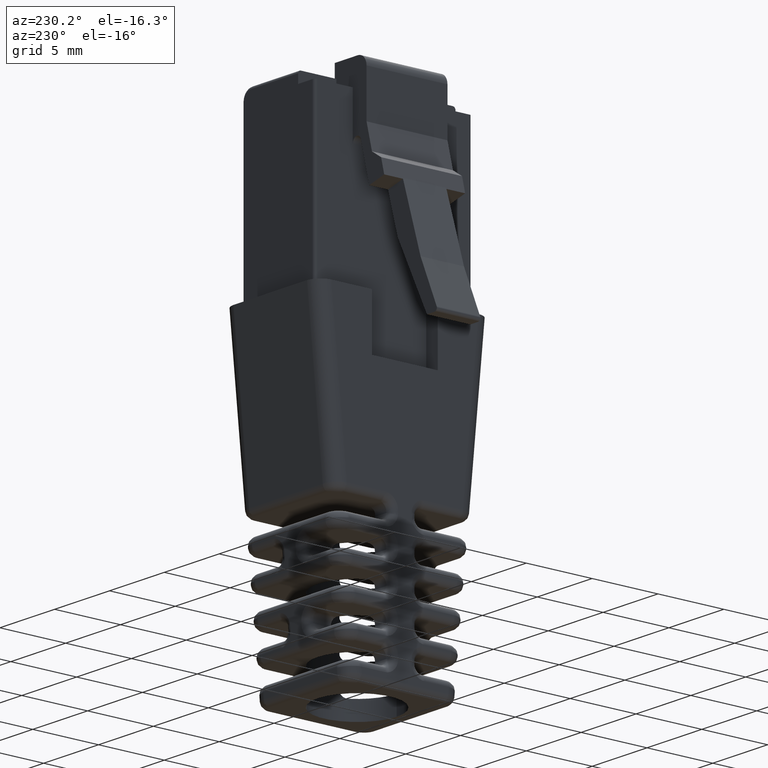
[diagram: clean part render]
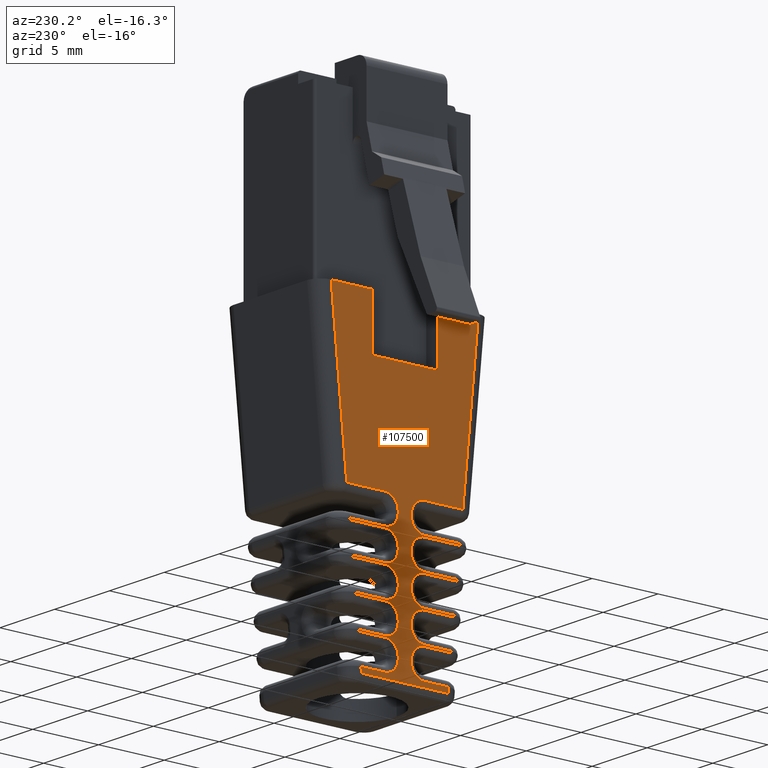
[diagram: same view with one face highlighted and labeled with its STEP entity id]
A machine part, auxiliary view. The second image highlights one B-rep face of the part: STEP entity #107500.
In plain terms, the highlighted planar face has unit normal (-1, -0, -0).
Its self-contained STEP definition (entity closure, byte-faithful):
#470=CARTESIAN_POINT('',(17.0233602125126,8.96886962969767,0.));
#480=VERTEX_POINT('',#470);
#510=CARTESIAN_POINT('',(0.,8.96886962969766,0.));
#520=DIRECTION('',(-1.,0.,0.));
#530=VECTOR('',#520,1.);
#540=LINE('',#510,#530);
#550=CARTESIAN_POINT('',(13.9281426136379,8.96886962969768,0.));
#560=VERTEX_POINT('',#550);
#570=EDGE_CURVE('',#480,#560,#540,.T.);
#1690=CARTESIAN_POINT('',(8.92814261363791,8.96886962969768,0.));
#1700=VERTEX_POINT('',#1690);
#1730=CARTESIAN_POINT('',(5.83292501476321,8.96886962969767,0.));
#1740=VERTEX_POINT('',#1730);
#1750=EDGE_CURVE('',#1700,#1740,#540,.T.);
#11920=CARTESIAN_POINT('',(14.722318545846,8.96886962969767,23.5));
#11930=VERTEX_POINT('',#11920);
#13050=CARTESIAN_POINT('',(8.13396668142988,8.96886962969767,23.5));
#13060=VERTEX_POINT('',#13050);
#13090=CARTESIAN_POINT('',(0.,8.96886962969767,23.5));
#13100=DIRECTION('',(-1.,0.,0.));
#13110=VECTOR('',#13100,1.);
#13120=LINE('',#13090,#13110);
#13130=EDGE_CURVE('',#11930,#13060,#13120,.T.);
#14370=CARTESIAN_POINT('',(9.92814261363791,8.96886962969767,14.33));
#14380=VERTEX_POINT('',#14370);
#14410=CARTESIAN_POINT('',(10.9281426136379,8.96886962969767,15.33));
#14420=CARTESIAN_POINT('',(10.9281426136379,8.96886962969767,
15.2987346432601));
#14430=CARTESIAN_POINT('',(10.9266763302358,8.96886962969767,
15.2674864866659));
#14440=CARTESIAN_POINT('',(10.9208208610839,8.96886962969767,
15.2052305342654));
#14450=CARTESIAN_POINT('',(10.9164348966287,8.96886962969767,
15.1742569875949));
#14460=CARTESIAN_POINT('',(10.9047754163983,8.96886962969767,
15.1128229038217));
#14470=CARTESIAN_POINT('',(10.8975083149034,8.96886962969767,
15.0823961637168));
#14480=CARTESIAN_POINT('',(10.8801472875261,8.96886962969767,
15.0223238335082));
#14490=CARTESIAN_POINT('',(10.8700629125407,8.96886962969767,
14.9927112912549));
#14500=CARTESIAN_POINT('',(10.8471529073493,8.96886962969767,
14.9345286324086));
#14510=CARTESIAN_POINT('',(10.8343398807234,8.96886962969767,
14.905990524093));
#14520=CARTESIAN_POINT('',(10.8060822316672,8.96886962969767,
14.8502088479071));
#14530=CARTESIAN_POINT('',(10.7906531547395,8.96886962969767,
14.8229959674512));
#14540=CARTESIAN_POINT('',(10.7572961910545,8.96886962969767,
14.7701054853017));
#14550=CARTESIAN_POINT('',(10.7393866551078,8.96886962969767,
14.7444569804774));
#14560=CARTESIAN_POINT('',(10.7012235189903,8.96886962969767,
14.6949224958231));
#14570=CARTESIAN_POINT('',(10.6809909136704,8.96886962969767,
14.671063766613));
#14580=CARTESIAN_POINT('',(10.6383569841328,8.96886962969767,
14.6253205902861));
#14590=CARTESIAN_POINT('',(10.6159791143028,8.96886962969767,
14.6034613080605));
#14600=CARTESIAN_POINT('',(10.5692490598507,8.96886962969767,
14.5619114327394));
#14610=CARTESIAN_POINT('',(10.5449225830353,8.96886962969767,
14.5422436976563));
#14620=CARTESIAN_POINT('',(10.5184541784871,8.96886962969767,
14.5228230050238));
#14630=CARTESIAN_POINT('',(10.5171913961812,8.96886962969767,
14.5219010108011));
#14640=CARTESIAN_POINT('',(10.3450819238855,8.96886962969767,
14.3968566067789));
#14650=CARTESIAN_POINT('',(10.1393178499373,8.96886962969767,14.33));
#14660=CARTESIAN_POINT('',(9.92814261363791,8.96886962969767,14.33));
#14670=B_SPLINE_CURVE_WITH_KNOTS('',3,(#14410,#14420,#14430,#14440,
#14450,#14460,#14470,#14480,#14490,#14500,#14510,#14520,#14530,#14540,
#14550,#14560,#14570,#14580,#14590,#14600,#14610,#14620,#14630,#14640,
#14650,#14660),.UNSPECIFIED.,.F.,.F.,(4,2,2,2,2,2,2,2,2,2,2,2,4),(0.,
0.0663238373009602,0.132647674601917,0.198971511902874,0.265295349203831
,0.331619186504788,0.397943023805746,0.464266861106703,0.53059069840766,
0.596914535708617,0.663238373009574,0.666555248208059,1.11454898610043),
.UNSPECIFIED.);
#14680=CARTESIAN_POINT('',(10.9281426136379,8.96886962969767,15.33));
#14690=VERTEX_POINT('',#14680);
#14700=EDGE_CURVE('',#14690,#14380,#14670,.T.);
#17260=CARTESIAN_POINT('',(9.92814261363791,8.96886962969767,18.77));
#17270=VERTEX_POINT('',#17260);
#17300=CARTESIAN_POINT('',(10.9281426136379,8.96886962969767,19.77));
#17310=CARTESIAN_POINT('',(10.9281426136379,8.96886962969767,
19.7387346432601));
#17320=CARTESIAN_POINT('',(10.9266763302358,8.96886962969767,
19.7074864866659));
#17330=CARTESIAN_POINT('',(10.9208208610839,8.96886962969767,
19.6452305342654));
#17340=CARTESIAN_POINT('',(10.9164348966287,8.96886962969767,
19.6142569875949));
#17350=CARTESIAN_POINT('',(10.9047754163983,8.96886962969767,
19.5528229038217));
#17360=CARTESIAN_POINT('',(10.8975083149034,8.96886962969767,
19.5223961637168));
#17370=CARTESIAN_POINT('',(10.8801472875261,8.96886962969767,
19.4623238335082));
#17380=CARTESIAN_POINT('',(10.8700629125407,8.96886962969767,
19.4327112912549));
#17390=CARTESIAN_POINT('',(10.8471529073493,8.96886962969767,
19.3745286324086));
#17400=CARTESIAN_POINT('',(10.8343398807234,8.96886962969767,
19.345990524093));
#17410=CARTESIAN_POINT('',(10.8060822316672,8.96886962969767,
19.2902088479071));
#17420=CARTESIAN_POINT('',(10.7906531547395,8.96886962969767,
19.2629959674512));
#17430=CARTESIAN_POINT('',(10.7572961910545,8.96886962969767,
19.2101054853017));
#17440=CARTESIAN_POINT('',(10.7393866551078,8.96886962969767,
19.1844569804774));
#17450=CARTESIAN_POINT('',(10.7012235189903,8.96886962969767,
19.1349224958231));
#17460=CARTESIAN_POINT('',(10.6809909136704,8.96886962969767,
19.111063766613));
#17470=CARTESIAN_POINT('',(10.6383569841328,8.96886962969767,
19.0653205902861));
#17480=CARTESIAN_POINT('',(10.6159791143028,8.96886962969767,
19.0434613080605));
#17490=CARTESIAN_POINT('',(10.5692490598507,8.96886962969767,
19.0019114327394));
#17500=CARTESIAN_POINT('',(10.5449225830353,8.96886962969767,
18.9822436976563));
#17510=CARTESIAN_POINT('',(10.4945070690676,8.96886962969767,
18.9452522651393));
#17520=CARTESIAN_POINT('',(10.4684457672197,8.96886962969767,
18.9279489179618));
#17530=CARTESIAN_POINT('',(10.4147878470858,8.96886962969767,
18.8958410102879));
#17540=CARTESIAN_POINT('',(10.3872207478632,8.96886962969767,
18.8810541134533));
#17550=CARTESIAN_POINT('',(10.3307919692946,8.96886962969767,
18.8541118960696));
#17560=CARTESIAN_POINT('',(10.3019613333563,8.96886962969767,
18.8419713973588));
#17570=CARTESIAN_POINT('',(10.2432575944882,8.96886962969767,
18.8204316394404));
#17580=CARTESIAN_POINT('',(10.2134167864995,8.96886962969767,
18.8110442299928));
#17590=CARTESIAN_POINT('',(10.1529539778996,8.96886962969767,
18.7950962237067));
#17600=CARTESIAN_POINT('',(10.1223652399543,8.96886962969767,
18.7885444004139));
#17610=CARTESIAN_POINT('',(10.0685513293063,8.96886962969767,
18.7796326847419));
#17620=CARTESIAN_POINT('',(10.04545926005,8.96886962969767,
18.776632694098));
#17630=CARTESIAN_POINT('',(9.99099214469616,8.96886962969767,
18.7714820974336));
#17640=CARTESIAN_POINT('',(9.95957611879057,8.96886962969767,18.77));
#17650=CARTESIAN_POINT('',(9.92814261363791,8.96886962969767,18.77));
#17660=B_SPLINE_CURVE_WITH_KNOTS('',3,(#17300,#17310,#17320,#17330,
#17340,#17350,#17360,#17370,#17380,#17390,#17400,#17410,#17420,#17430,
#17440,#17450,#17460,#17470,#17480,#17490,#17500,#17510,#17520,#17530,
#17540,#17550,#17560,#17570,#17580,#17590,#17600,#17610,#17620,#17630,
#17640,#17650),.UNSPECIFIED.,.F.,.F.,(4,2,2,2,2,2,2,2,2,2,2,2,2,2,2,2,2,
4),(0.,0.066323837300966,0.132647674601926,0.198971511902886,
0.265295349203845,0.331619186504805,0.397943023805765,0.464266861106725,
0.530590698407685,0.596914535708645,0.663238373009604,0.729562210310564,
0.795886047611524,0.862209884912484,0.928533722213444,0.994857559514403,
1.04424500277642,1.1109394786907),.UNSPECIFIED.);
#17670=CARTESIAN_POINT('',(10.9281426136379,8.96886962969767,19.77));
#17680=VERTEX_POINT('',#17670);
#17690=EDGE_CURVE('',#17680,#17270,#17660,.T.);
#20730=CARTESIAN_POINT('',(10.9281426136291,8.96886962969767,19.88));
#20740=VERTEX_POINT('',#20730);
#20770=CARTESIAN_POINT('',(10.8057259491371,8.96886962969767,
19.4005758774619));
#20780=CARTESIAN_POINT('',(10.818190542216,8.96886962969767,
19.4233922495463));
#20790=CARTESIAN_POINT('',(10.8297615484407,8.96886962969767,
19.4466878060133));
#20800=CARTESIAN_POINT('',(10.8532181550359,8.96886962969767,
19.4989320726705));
#20810=CARTESIAN_POINT('',(10.8646794530519,8.96886962969767,
19.5280393900553));
#20820=CARTESIAN_POINT('',(10.8848371248048,8.96886962969767,
19.5872319436224));
#20830=CARTESIAN_POINT('',(10.893522409115,8.96886962969767,
19.6172846159495));
#20840=CARTESIAN_POINT('',(10.9080486288105,8.96886962969767,
19.6781046707805));
#20850=CARTESIAN_POINT('',(10.913881572824,8.96886962969767,
19.708838594085));
#20860=CARTESIAN_POINT('',(10.9226486835211,8.96886962969767,
19.7707516613512));
#20870=CARTESIAN_POINT('',(10.9255780271163,8.96886962969767,
19.80189674481));
#20880=CARTESIAN_POINT('',(10.928508983131,8.96886962969767,
19.8643587302501));
#20890=CARTESIAN_POINT('',(10.928508983131,8.96886962969767,
19.8956412697499));
#20900=CARTESIAN_POINT('',(10.9255780271163,8.96886962969767,
19.95810325519));
#20910=CARTESIAN_POINT('',(10.9226486835211,8.96886962969767,
19.9892483386488));
#20920=CARTESIAN_POINT('',(10.913881572824,8.96886962969767,
20.051161405915));
#20930=CARTESIAN_POINT('',(10.9080486288105,8.96886962969767,
20.0818953292195));
#20940=CARTESIAN_POINT('',(10.893522409115,8.96886962969767,
20.1427153840505));
#20950=CARTESIAN_POINT('',(10.8848371248048,8.96886962969767,
20.1727680563776));
#20960=CARTESIAN_POINT('',(10.8646794530519,8.96886962969767,
20.2319606099447));
#20970=CARTESIAN_POINT('',(10.8532181550359,8.96886962969767,
20.2610679273295));
#20980=CARTESIAN_POINT('',(10.8276061775697,8.96886962969767,
20.3181127933435));
#20990=CARTESIAN_POINT('',(10.813469588147,8.96886962969767,
20.3460189596343));
#21000=CARTESIAN_POINT('',(10.7826283839464,8.96886962969767,
20.4004148257616));
#21010=CARTESIAN_POINT('',(10.7659407359732,8.96886962969767,
20.4268746005655));
#21020=CARTESIAN_POINT('',(10.7301413386495,8.96886962969767,
20.4781434339787));
#21030=CARTESIAN_POINT('',(10.7110492837761,8.96886962969767,
20.5029242878434));
#21040=CARTESIAN_POINT('',(10.6706062997205,8.96886962969767,
20.550615536191));
#21050=CARTESIAN_POINT('',(10.6492776196116,8.96886962969767,
20.5734996940817));
#21060=CARTESIAN_POINT('',(10.6045464632219,8.96886962969767,
20.6171942449586));
#21070=CARTESIAN_POINT('',(10.5811685950853,8.96886962969767,
20.6379806000728));
#21080=CARTESIAN_POINT('',(10.5325423653723,8.96886962969767,
20.6772944641947));
#21090=CARTESIAN_POINT('',(10.5073207547537,8.96886962969767,
20.6958003452964));
#21100=CARTESIAN_POINT('',(10.4552267807726,8.96886962969767,
20.7303880310118));
#21110=CARTESIAN_POINT('',(10.4283830760929,8.96886962969767,
20.7464508077525));
#21120=CARTESIAN_POINT('',(10.3732791615601,8.96886962969767,
20.7760083572356));
#21130=CARTESIAN_POINT('',(10.3450492662613,8.96886962969767,
20.7894868693557));
#21140=CARTESIAN_POINT('',(10.287419666359,8.96886962969767,
20.813754529799));
#21150=CARTESIAN_POINT('',(10.2580516657761,8.96886962969767,
20.8245303276493));
#21160=CARTESIAN_POINT('',(10.1984028315004,8.96886962969767,
20.8432948339802));
#21170=CARTESIAN_POINT('',(10.1681548126784,8.96886962969767,
20.8512732194619));
#21180=CARTESIAN_POINT('',(10.1070109401297,8.96886962969767,
20.864369668524));
#21190=CARTESIAN_POINT('',(10.0761487237456,8.96886962969767,
20.8694805272985));
#21200=CARTESIAN_POINT('',(10.0375027086027,8.96886962969767,
20.8740316177701));
#21210=CARTESIAN_POINT('',(10.029898243025,8.96886962969767,
20.8748388088775));
#21220=CARTESIAN_POINT('',(9.99099214568551,8.96886962969767,
20.8785179024819));
#21230=CARTESIAN_POINT('',(9.95957611928677,8.96886962969767,20.88));
#21240=CARTESIAN_POINT('',(9.92814261363791,8.96886962969767,20.88));
#21250=B_SPLINE_CURVE_WITH_KNOTS('',3,(#20770,#20780,#20790,#20800,
#20810,#20820,#20830,#20840,#20850,#20860,#20870,#20880,#20890,#20900,
#20910,#20920,#20930,#20940,#20950,#20960,#20970,#20980,#20990,#21000,
#21010,#21020,#21030,#21040,#21050,#21060,#21070,#21080,#21090,#21100,
#21110,#21120,#21130,#21140,#21150,#21160,#21170,#21180,#21190,#21200,
#21210,#21220,#21230,#21240),.UNSPECIFIED.,.F.,.F.,(4,2,2,2,2,2,2,2,2,2,
2,2,2,2,2,2,2,2,2,2,2,2,2,4),(1.86823038310762,1.92339128172768,
1.98971511902863,2.05603895632959,2.12236279363054,2.1886866309315,
2.25501046823245,2.32133430553341,2.38765814283436,2.45398198013531,
2.52030581743627,2.58662965473722,2.65295349203818,2.71927732933913,
2.78560116664009,2.85192500394104,2.918248841242,2.98457267854295,
3.05089651584391,3.11722035314486,3.18354419044581,3.24986802774677,
3.26609127458017,3.33278535757065),.UNSPECIFIED.);
#21260=CARTESIAN_POINT('',(9.92814261363791,8.96886962969767,20.88));
#21270=VERTEX_POINT('',#21260);
#21280=EDGE_CURVE('',#20740,#21270,#21250,.T.);
#23680=CARTESIAN_POINT('',(10.9281426136379,8.96886962969767,15.44));
#23690=VERTEX_POINT('',#23680);
#23720=CARTESIAN_POINT('',(10.9281426136379,8.96886962969767,15.44));
#23730=CARTESIAN_POINT('',(10.9281426136379,8.96886962969767,
15.4714356527748));
#23740=CARTESIAN_POINT('',(10.9266603136387,8.96886962969767,
15.5028538227165));
#23750=CARTESIAN_POINT('',(10.9222452666582,8.96886962969767,
15.5495393564928));
#23760=CARTESIAN_POINT('',(10.9204330361466,8.96886962969767,
15.5648951725573));
#23770=CARTESIAN_POINT('',(10.913881572824,8.96886962969767,
15.611161405915));
#23780=CARTESIAN_POINT('',(10.9080486288105,8.96886962969767,
15.6418953292195));
#23790=CARTESIAN_POINT('',(10.893522409115,8.96886962969767,
15.7027153840505));
#23800=CARTESIAN_POINT('',(10.8848371248048,8.96886962969767,
15.7327680563776));
#23810=CARTESIAN_POINT('',(10.8646794530519,8.96886962969767,
15.7919606099447));
#23820=CARTESIAN_POINT('',(10.8532181550359,8.96886962969767,
15.8210679273295));
#23830=CARTESIAN_POINT('',(10.8276061775697,8.96886962969767,
15.8781127933435));
#23840=CARTESIAN_POINT('',(10.813469588147,8.96886962969767,
15.9060189596343));
#23850=CARTESIAN_POINT('',(10.7826283839464,8.96886962969767,
15.9604148257616));
#23860=CARTESIAN_POINT('',(10.7659407359732,8.96886962969767,
15.9868746005655));
#23870=CARTESIAN_POINT('',(10.7301413386495,8.96886962969767,
16.0381434339787));
#23880=CARTESIAN_POINT('',(10.7110492837761,8.96886962969767,
16.0629242878434));
#23890=CARTESIAN_POINT('',(10.6706062997205,8.96886962969767,
16.110615536191));
#23900=CARTESIAN_POINT('',(10.6492776196116,8.96886962969767,
16.1334996940817));
#23910=CARTESIAN_POINT('',(10.6045464632219,8.96886962969767,
16.1771942449586));
#23920=CARTESIAN_POINT('',(10.5811685950853,8.96886962969767,
16.1979806000728));
#23930=CARTESIAN_POINT('',(10.5325423653723,8.96886962969767,
16.2372944641947));
#23940=CARTESIAN_POINT('',(10.5073207547537,8.96886962969767,
16.2558003452964));
#23950=CARTESIAN_POINT('',(10.4552267807726,8.96886962969767,
16.2903880310118));
#23960=CARTESIAN_POINT('',(10.4283830760929,8.96886962969767,
16.3064508077525));
#23970=CARTESIAN_POINT('',(10.3732791615601,8.96886962969767,
16.3360083572356));
#23980=CARTESIAN_POINT('',(10.3450492662613,8.96886962969767,
16.3494868693557));
#23990=CARTESIAN_POINT('',(10.287419666359,8.96886962969767,
16.373754529799));
#24000=CARTESIAN_POINT('',(10.2580516657761,8.96886962969767,
16.3845303276493));
#24010=CARTESIAN_POINT('',(10.1984028315004,8.96886962969767,
16.4032948339802));
#24020=CARTESIAN_POINT('',(10.1681548126784,8.96886962969767,
16.4112732194619));
#24030=CARTESIAN_POINT('',(10.1070109401297,8.96886962969767,
16.424369668524));
#24040=CARTESIAN_POINT('',(10.0761487237456,8.96886962969767,
16.4294805272985));
#24050=CARTESIAN_POINT('',(10.0375027086027,8.96886962969767,
16.4340316177701));
#24060=CARTESIAN_POINT('',(10.0298982430249,8.96886962969767,
16.4348388088775));
#24070=CARTESIAN_POINT('',(9.99099214568551,8.96886962969767,
16.4385179024819));
#24080=CARTESIAN_POINT('',(9.95957611928677,8.96886962969767,16.44));
#24090=CARTESIAN_POINT('',(9.92814261363791,8.96886962969767,16.44));
#24100=B_SPLINE_CURVE_WITH_KNOTS('',3,(#23720,#23730,#23740,#23750,
#23760,#23770,#23780,#23790,#23800,#23810,#23820,#23830,#23840,#23850,
#23860,#23870,#23880,#23890,#23900,#23910,#23920,#23930,#23940,#23950,
#23960,#23970,#23980,#23990,#24000,#24010,#24020,#24030,#24040,#24050,
#24060,#24070,#24080,#24090),.UNSPECIFIED.,.F.,.F.,(4,2,2,2,2,2,2,2,2,2,
2,2,2,2,2,2,2,2,4),(0.,0.0667034153459248,0.0995041819205436,
0.165828019221502,0.232151856522459,0.298475693823416,0.364799531124373,
0.43112336842533,0.497447205726287,0.563771043027244,0.630094880328202,
0.696418717629159,0.762742554930115,0.829066392231072,0.895390229532029,
0.961714066832986,1.02803790413394,1.04426115096736,1.11095523395784),
.UNSPECIFIED.);
#24110=CARTESIAN_POINT('',(9.92814261363791,8.96886962969767,16.44));
#24120=VERTEX_POINT('',#24110);
#24130=EDGE_CURVE('',#23690,#24120,#24100,.T.);
#96690=CARTESIAN_POINT('',(15.838568545846,8.96886962969767,12.1));
#96700=VERTEX_POINT('',#96690);
#96730=CARTESIAN_POINT('',(16.4160272522621,8.96886962969767,
6.20254938128195));
#96740=DIRECTION('',(0.0974506187180489,0.,-0.995240361375818));
#96750=VECTOR('',#96740,1.);
#96760=LINE('',#96730,#96750);
#96770=CARTESIAN_POINT('',(16.1254943580982,8.96886962969766,
9.17431154153862));
#96780=VERTEX_POINT('',#96770);
#96790=EDGE_CURVE('',#96700,#96780,#96760,.T.);
#96810=CARTESIAN_POINT('',(16.9281426136379,8.96886962969766,0.));
#96820=DIRECTION('',(0.0871557427476582,-1.59787642798923E-16,
-0.996194698091746));
#96830=VECTOR('',#96820,55.5849253510679);
#96840=LINE('',#96810,#96830);
#96850=CARTESIAN_POINT('',(16.1292878034444,8.96886962969766,
9.13095226282416));
#96860=VERTEX_POINT('',#96850);
#96870=EDGE_CURVE('',#96780,#96860,#96840,.T.);
#96890=CARTESIAN_POINT('',(16.4160272522621,8.96886962969767,
6.20254938128195));
#96900=DIRECTION('',(0.0974506187180489,0.,-0.995240361375818));
#96910=VECTOR('',#96900,1.);
#96920=LINE('',#96890,#96910);
#96930=EDGE_CURVE('',#96860,#480,#96920,.T.);
#97050=CARTESIAN_POINT('',(4.82814261363792,8.96886962969767,0.));
#97060=DIRECTION('',(-0.,1.,0.));
#97070=DIRECTION('',(1.,0.,0.));
#97080=AXIS2_PLACEMENT_3D('',#97050,#97060,#97070);
#97090=PLANE('',#97080);
#97100=ORIENTED_EDGE('',*,*,#96870,.T.);
#97110=ORIENTED_EDGE('',*,*,#96790,.T.);
#97120=CARTESIAN_POINT('',(0.,8.96886962969767,12.1));
#97130=DIRECTION('',(1.,0.,0.));
#97140=VECTOR('',#97130,1.);
#97150=LINE('',#97120,#97140);
#97160=CARTESIAN_POINT('',(12.9281426136379,8.96886962969767,12.1));
#97170=VERTEX_POINT('',#97160);
#97180=EDGE_CURVE('',#97170,#96700,#97150,.T.);
#97190=ORIENTED_EDGE('',*,*,#97180,.T.);
#97200=CARTESIAN_POINT('',(12.9281426136379,8.96886962969767,12.1));
#97210=CARTESIAN_POINT('',(12.8967091079891,8.96886962969767,12.1));
#97220=CARTESIAN_POINT('',(12.8652930815903,8.96886962969767,
12.1014820975181));
#97230=CARTESIAN_POINT('',(12.8263869842509,8.96886962969767,
12.1051611911225));
#97240=CARTESIAN_POINT('',(12.8187825186731,8.96886962969767,
12.1059683822299));
#97250=CARTESIAN_POINT('',(12.7801365035302,8.96886962969767,
12.1105194727015));
#97260=CARTESIAN_POINT('',(12.7492742871461,8.96886962969767,
12.115630331476));
#97270=CARTESIAN_POINT('',(12.6881304145974,8.96886962969767,
12.1287267805381));
#97280=CARTESIAN_POINT('',(12.6578823957754,8.96886962969767,
12.1367051660198));
#97290=CARTESIAN_POINT('',(12.5982335614997,8.96886962969767,
12.1554696723507));
#97300=CARTESIAN_POINT('',(12.5688655609168,8.96886962969767,
12.166245470201));
#97310=CARTESIAN_POINT('',(12.5112359610145,8.96886962969767,
12.1905131306443));
#97320=CARTESIAN_POINT('',(12.4830060657158,8.96886962969767,
12.2039916427644));
#97330=CARTESIAN_POINT('',(12.4279021511829,8.96886962969767,
12.2335491922475));
#97340=CARTESIAN_POINT('',(12.4010584465033,8.96886962969767,
12.2496119689882));
#97350=CARTESIAN_POINT('',(12.3489644725222,8.96886962969767,
12.2841996547036));
#97360=CARTESIAN_POINT('',(12.3237428619035,8.96886962969767,
12.3027055358053));
#97370=CARTESIAN_POINT('',(12.2751166321905,8.96886962969767,
12.3420193999272));
#97380=CARTESIAN_POINT('',(12.2517387640539,8.96886962969767,
12.3628057550414));
#97390=CARTESIAN_POINT('',(12.2070076076642,8.96886962969767,
12.4065003059183));
#97400=CARTESIAN_POINT('',(12.1856789275554,8.96886962969767,
12.429384463809));
#97410=CARTESIAN_POINT('',(12.1452359434997,8.96886962969767,
12.4770757121566));
#97420=CARTESIAN_POINT('',(12.1261438886263,8.96886962969767,
12.5018565660213));
#97430=CARTESIAN_POINT('',(12.0903444913027,8.96886962969767,
12.5531253994345));
#97440=CARTESIAN_POINT('',(12.0736568433295,8.96886962969767,
12.5795851742384));
#97450=CARTESIAN_POINT('',(12.0428156391288,8.96886962969767,
12.6339810403657));
#97460=CARTESIAN_POINT('',(12.0286790497062,8.96886962969767,
12.6618872066565));
#97470=CARTESIAN_POINT('',(12.0030670722399,8.96886962969767,
12.7189320726705));
#97480=CARTESIAN_POINT('',(11.991605774224,8.96886962969767,
12.7480393900553));
#97490=CARTESIAN_POINT('',(11.971448102471,8.96886962969767,
12.8072319436224));
#97500=CARTESIAN_POINT('',(11.9627628181609,8.96886962969767,
12.8372846159495));
#97510=CARTESIAN_POINT('',(11.9482365984653,8.96886962969767,
12.8981046707805));
#97520=CARTESIAN_POINT('',(11.9424036544518,8.96886962969767,
12.928838594085));
#97530=CARTESIAN_POINT('',(11.9358521911292,8.96886962969767,
12.9751048274427));
#97540=CARTESIAN_POINT('',(11.9340399606177,8.96886962969767,
12.9904606435072));
#97550=CARTESIAN_POINT('',(11.9296249136372,8.96886962969767,
13.0371461772835));
#97560=CARTESIAN_POINT('',(11.9281426136379,8.96886962969767,
13.0685643472252));
#97570=CARTESIAN_POINT('',(11.9281426136379,8.96886962969767,13.1));
#97580=B_SPLINE_CURVE_WITH_KNOTS('',3,(#97200,#97210,#97220,#97230,
#97240,#97250,#97260,#97270,#97280,#97290,#97300,#97310,#97320,#97330,
#97340,#97350,#97360,#97370,#97380,#97390,#97400,#97410,#97420,#97430,
#97440,#97450,#97460,#97470,#97480,#97490,#97500,#97510,#97520,#97530,
#97540,#97550,#97560,#97570),.UNSPECIFIED.,.F.,.F.,(4,2,2,2,2,2,2,2,2,2,
2,2,2,2,2,2,2,2,4),(0.,0.0666940829904808,0.0829173298238914,
0.149241167124849,0.215565004425806,0.281888841726763,0.34821267902772,
0.414536516328677,0.480860353629635,0.547184190930592,0.613508028231549,
0.679831865532506,0.746155702833464,0.812479540134421,0.878803377435378,
0.945127214736335,1.01145105203729,1.04425181861191,1.11095523395784),
.UNSPECIFIED.);
#97590=CARTESIAN_POINT('',(11.9281426136379,8.96886962969767,13.1));
#97600=VERTEX_POINT('',#97590);
#97610=EDGE_CURVE('',#97170,#97600,#97580,.T.);
#97620=ORIENTED_EDGE('',*,*,#97610,.F.);
#97630=CARTESIAN_POINT('',(11.9281426136379,8.96886962969767,0.));
#97640=DIRECTION('',(0.,0.,-1.));
#97650=VECTOR('',#97640,1.);
#97660=LINE('',#97630,#97650);
#97670=CARTESIAN_POINT('',(11.9281426136467,8.96886962969767,13.22));
#97680=VERTEX_POINT('',#97670);
#97690=EDGE_CURVE('',#97680,#97600,#97660,.T.);
#97700=ORIENTED_EDGE('',*,*,#97690,.T.);
#97710=CARTESIAN_POINT('',(12.0505592781387,8.96886962969767,
12.7405758774619));
#97720=CARTESIAN_POINT('',(12.0380946850598,8.96886962969767,
12.7633922495463));
#97730=CARTESIAN_POINT('',(12.0265236788351,8.96886962969767,
12.7866878060133));
#97740=CARTESIAN_POINT('',(12.0030670722399,8.96886962969767,
12.8389320726705));
#97750=CARTESIAN_POINT('',(11.991605774224,8.96886962969767,
12.8680393900553));
#97760=CARTESIAN_POINT('',(11.971448102471,8.96886962969767,
12.9272319436224));
#97770=CARTESIAN_POINT('',(11.9627628181609,8.96886962969767,
12.9572846159495));
#97780=CARTESIAN_POINT('',(11.9482365984653,8.96886962969767,
13.0181046707805));
#97790=CARTESIAN_POINT('',(11.9424036544518,8.96886962969767,
13.048838594085));
#97800=CARTESIAN_POINT('',(11.9336365437547,8.96886962969767,
13.1107516613512));
#97810=CARTESIAN_POINT('',(11.9307072001595,8.96886962969767,
13.14189674481));
#97820=CARTESIAN_POINT('',(11.9277762441449,8.96886962969767,
13.2043587302501));
#97830=CARTESIAN_POINT('',(11.9277762441449,8.96886962969767,
13.2356412697499));
#97840=CARTESIAN_POINT('',(11.9307072001595,8.96886962969767,
13.29810325519));
#97850=CARTESIAN_POINT('',(11.9336365437547,8.96886962969767,
13.3292483386488));
#97860=CARTESIAN_POINT('',(11.9424036544518,8.96886962969767,
13.391161405915));
#97870=CARTESIAN_POINT('',(11.9482365984653,8.96886962969767,
13.4218953292195));
#97880=CARTESIAN_POINT('',(11.9627628181609,8.96886962969767,
13.4827153840505));
#97890=CARTESIAN_POINT('',(11.971448102471,8.96886962969767,
13.5127680563776));
#97900=CARTESIAN_POINT('',(11.991605774224,8.96886962969767,
13.5719606099447));
#97910=CARTESIAN_POINT('',(12.0030670722399,8.96886962969767,
13.6010679273295));
#97920=CARTESIAN_POINT('',(12.0286790497062,8.96886962969767,
13.6581127933435));
#97930=CARTESIAN_POINT('',(12.0428156391288,8.96886962969767,
13.6860189596343));
#97940=CARTESIAN_POINT('',(12.0736568433295,8.96886962969767,
13.7404148257616));
#97950=CARTESIAN_POINT('',(12.0903444913027,8.96886962969767,
13.7668746005655));
#97960=CARTESIAN_POINT('',(12.1261438886263,8.96886962969767,
13.8181434339787));
#97970=CARTESIAN_POINT('',(12.1452359434997,8.96886962969767,
13.8429242878434));
#97980=CARTESIAN_POINT('',(12.1856789275554,8.96886962969767,
13.890615536191));
#97990=CARTESIAN_POINT('',(12.2070076076642,8.96886962969767,
13.9134996940817));
#98000=CARTESIAN_POINT('',(12.2517387640539,8.96886962969767,
13.9571942449586));
#98010=CARTESIAN_POINT('',(12.2751166321905,8.96886962969767,
13.9779806000728));
#98020=CARTESIAN_POINT('',(12.3237428619035,8.96886962969767,
14.0172944641947));
#98030=CARTESIAN_POINT('',(12.3489644725222,8.96886962969767,
14.0358003452964));
#98040=CARTESIAN_POINT('',(12.4010584465033,8.96886962969767,
14.0703880310118));
#98050=CARTESIAN_POINT('',(12.4279021511829,8.96886962969767,
14.0864508077525));
#98060=CARTESIAN_POINT('',(12.4830060657158,8.96886962969767,
14.1160083572356));
#98070=CARTESIAN_POINT('',(12.5112359610145,8.96886962969767,
14.1294868693557));
#98080=CARTESIAN_POINT('',(12.5688655609168,8.96886962969767,
14.153754529799));
#98090=CARTESIAN_POINT('',(12.5982335614997,8.96886962969767,
14.1645303276493));
#98100=CARTESIAN_POINT('',(12.6578823957754,8.96886962969767,
14.1832948339802));
#98110=CARTESIAN_POINT('',(12.6881304145974,8.96886962969767,
14.1912732194619));
#98120=CARTESIAN_POINT('',(12.7492742871461,8.96886962969767,
14.204369668524));
#98130=CARTESIAN_POINT('',(12.7801365035302,8.96886962969767,
14.2094805272985));
#98140=CARTESIAN_POINT('',(12.8187825186731,8.96886962969767,
14.2140316177701));
#98150=CARTESIAN_POINT('',(12.8263869842509,8.96886962969767,
14.2148388088775));
#98160=CARTESIAN_POINT('',(12.8652930815903,8.96886962969767,
14.2185179024819));
#98170=CARTESIAN_POINT('',(12.8967091079891,8.96886962969767,14.22));
#98180=CARTESIAN_POINT('',(12.9281426136379,8.96886962969767,14.22));
#98190=B_SPLINE_CURVE_WITH_KNOTS('',3,(#97710,#97720,#97730,#97740,
#97750,#97760,#97770,#97780,#97790,#97800,#97810,#97820,#97830,#97840,
#97850,#97860,#97870,#97880,#97890,#97900,#97910,#97920,#97930,#97940,
#97950,#97960,#97970,#97980,#97990,#98000,#98010,#98020,#98030,#98040,
#98050,#98060,#98070,#98080,#98090,#98100,#98110,#98120,#98130,#98140,
#98150,#98160,#98170,#98180),.UNSPECIFIED.,.F.,.F.,(4,2,2,2,2,2,2,2,2,2,
2,2,2,2,2,2,2,2,2,2,2,2,2,4),(1.86823038310767,1.92339128172773,
1.98971511902869,2.05603895632964,2.1223627936306,2.18868663093156,
2.25501046823251,2.32133430553347,2.38765814283443,2.45398198013538,
2.52030581743634,2.58662965473729,2.65295349203825,2.71927732933921,
2.78560116664016,2.85192500394112,2.91824884124208,2.98457267854303,
3.05089651584399,3.11722035314494,3.1835441904459,3.24986802774686,
3.26609127458027,3.33278535757075),.UNSPECIFIED.);
#98200=CARTESIAN_POINT('',(12.9281426136379,8.96886962969767,14.22));
#98210=VERTEX_POINT('',#98200);
#98220=EDGE_CURVE('',#97680,#98210,#98190,.T.);
#98230=ORIENTED_EDGE('',*,*,#98220,.F.);
#98240=CARTESIAN_POINT('',(0.,8.96886962969767,14.22));
#98250=DIRECTION('',(-1.,0.,0.));
#98260=VECTOR('',#98250,1.);
#98270=LINE('',#98240,#98260);
#98280=CARTESIAN_POINT('',(15.6309852125126,8.96886962969767,14.22));
#98290=VERTEX_POINT('',#98280);
#98300=EDGE_CURVE('',#98290,#98210,#98270,.T.);
#98310=ORIENTED_EDGE('',*,*,#98300,.T.);
#98320=CARTESIAN_POINT('',(17.0233602125126,8.96886962969767,0.));
#98330=DIRECTION('',(0.0974506187180489,0.,-0.995240361375818));
#98340=VECTOR('',#98330,1.);
#98350=LINE('',#98320,#98340);
#98360=CARTESIAN_POINT('',(15.6202143791793,8.96886962969767,14.33));
#98370=VERTEX_POINT('',#98360);
#98380=EDGE_CURVE('',#98370,#98290,#98350,.T.);
#98390=ORIENTED_EDGE('',*,*,#98380,.T.);
#98400=CARTESIAN_POINT('',(0.,8.96886962969767,14.33));
#98410=DIRECTION('',(-1.,0.,0.));
#98420=VECTOR('',#98410,1.);
#98430=LINE('',#98400,#98420);
#98440=CARTESIAN_POINT('',(12.9281426136379,8.96886962969767,14.33));
#98450=VERTEX_POINT('',#98440);
#98460=EDGE_CURVE('',#98370,#98450,#98430,.T.);
#98470=ORIENTED_EDGE('',*,*,#98460,.F.);
#98480=CARTESIAN_POINT('',(11.9281426136379,8.96886962969767,15.33));
#98490=CARTESIAN_POINT('',(11.9281426136379,8.96886962969767,
15.2987346432601));
#98500=CARTESIAN_POINT('',(11.9296088970401,8.96886962969767,
15.2674864866659));
#98510=CARTESIAN_POINT('',(11.935464366192,8.96886962969767,
15.2052305342654));
#98520=CARTESIAN_POINT('',(11.9398503306472,8.96886962969767,
15.1742569875949));
#98530=CARTESIAN_POINT('',(11.9515098108775,8.96886962969767,
15.1128229038217));
#98540=CARTESIAN_POINT('',(11.9587769123724,8.96886962969767,
15.0823961637168));
#98550=CARTESIAN_POINT('',(11.9761379397497,8.96886962969767,
15.0223238335082));
#98560=CARTESIAN_POINT('',(11.9862223147351,8.96886962969767,
14.9927112912549));
#98570=CARTESIAN_POINT('',(12.0091323199265,8.96886962969767,
14.9345286324086));
#98580=CARTESIAN_POINT('',(12.0219453465525,8.96886962969767,
14.905990524093));
#98590=CARTESIAN_POINT('',(12.0502029956086,8.96886962969767,
14.8502088479071));
#98600=CARTESIAN_POINT('',(12.0656320725363,8.96886962969767,
14.8229959674512));
#98610=CARTESIAN_POINT('',(12.0989890362213,8.96886962969767,
14.7701054853017));
#98620=CARTESIAN_POINT('',(12.116898572168,8.96886962969767,
14.7444569804774));
#98630=CARTESIAN_POINT('',(12.1550617082855,8.96886962969767,
14.6949224958231));
#98640=CARTESIAN_POINT('',(12.1752943136054,8.96886962969767,
14.671063766613));
#98650=CARTESIAN_POINT('',(12.2179282431431,8.96886962969767,
14.6253205902861));
#98660=CARTESIAN_POINT('',(12.2403061129731,8.96886962969767,
14.6034613080605));
#98670=CARTESIAN_POINT('',(12.2870361674251,8.96886962969767,
14.5619114327394));
#98680=CARTESIAN_POINT('',(12.3113626442405,8.96886962969767,
14.5422436976563));
#98690=CARTESIAN_POINT('',(12.3378310487887,8.96886962969767,
14.5228230050238));
#98700=CARTESIAN_POINT('',(12.3390938310947,8.96886962969767,
14.5219010108011));
#98710=CARTESIAN_POINT('',(12.5112033033904,8.96886962969767,
14.3968566067789));
#98720=CARTESIAN_POINT('',(12.7169673773386,8.96886962969767,14.33));
#98730=CARTESIAN_POINT('',(12.9281426136379,8.96886962969767,14.33));
#98740=B_SPLINE_CURVE_WITH_KNOTS('',3,(#98480,#98490,#98500,#98510,
#98520,#98530,#98540,#98550,#98560,#98570,#98580,#98590,#98600,#98610,
#98620,#98630,#98640,#98650,#98660,#98670,#98680,#98690,#98700,#98710,
#98720,#98730),.UNSPECIFIED.,.F.,.F.,(4,2,2,2,2,2,2,2,2,2,2,2,4),(0.,
0.06632383730096,0.132647674601917,0.198971511902874,0.265295349203831,
0.331619186504788,0.397943023805746,0.464266861106703,0.53059069840766,
0.596914535708617,0.663238373009574,0.666555248208059,1.11454898610041),
.UNSPECIFIED.);
#98750=CARTESIAN_POINT('',(11.9281426136379,8.96886962969767,15.33));
#98760=VERTEX_POINT('',#98750);
#98770=EDGE_CURVE('',#98760,#98450,#98740,.T.);
#98780=ORIENTED_EDGE('',*,*,#98770,.T.);
#98790=CARTESIAN_POINT('',(11.9281426136379,8.96886962969767,0.));
#98800=DIRECTION('',(0.,0.,1.));
#98810=VECTOR('',#98800,1.);
#98820=LINE('',#98790,#98810);
#98830=CARTESIAN_POINT('',(11.9281426136379,8.96886962969767,15.44));
#98840=VERTEX_POINT('',#98830);
#98850=EDGE_CURVE('',#98760,#98840,#98820,.T.);
#98860=ORIENTED_EDGE('',*,*,#98850,.F.);
#98870=CARTESIAN_POINT('',(11.9281426136379,8.96886962969767,15.44));
#98880=CARTESIAN_POINT('',(11.9281426136379,8.96886962969767,
15.4714356527748));
#98890=CARTESIAN_POINT('',(11.9296249136372,8.96886962969767,
15.5028538227165));
#98900=CARTESIAN_POINT('',(11.9340399606177,8.96886962969767,
15.5495393564928));
#98910=CARTESIAN_POINT('',(11.9358521911292,8.96886962969767,
15.5648951725573));
#98920=CARTESIAN_POINT('',(11.9424036544518,8.96886962969767,
15.611161405915));
#98930=CARTESIAN_POINT('',(11.9482365984653,8.96886962969767,
15.6418953292195));
#98940=CARTESIAN_POINT('',(11.9627628181609,8.96886962969767,
15.7027153840505));
#98950=CARTESIAN_POINT('',(11.971448102471,8.96886962969767,
15.7327680563776));
#98960=CARTESIAN_POINT('',(11.991605774224,8.96886962969767,
15.7919606099447));
#98970=CARTESIAN_POINT('',(12.0030670722399,8.96886962969767,
15.8210679273295));
#98980=CARTESIAN_POINT('',(12.0286790497062,8.96886962969767,
15.8781127933435));
#98990=CARTESIAN_POINT('',(12.0428156391288,8.96886962969767,
15.9060189596343));
#99000=CARTESIAN_POINT('',(12.0736568433295,8.96886962969767,
15.9604148257616));
#99010=CARTESIAN_POINT('',(12.0903444913027,8.96886962969767,
15.9868746005655));
#99020=CARTESIAN_POINT('',(12.1261438886263,8.96886962969767,
16.0381434339787));
#99030=CARTESIAN_POINT('',(12.1452359434997,8.96886962969767,
16.0629242878434));
#99040=CARTESIAN_POINT('',(12.1856789275554,8.96886962969767,
16.110615536191));
#99050=CARTESIAN_POINT('',(12.2070076076642,8.96886962969767,
16.1334996940817));
#99060=CARTESIAN_POINT('',(12.2517387640539,8.96886962969767,
16.1771942449586));
#99070=CARTESIAN_POINT('',(12.2751166321905,8.96886962969767,
16.1979806000728));
#99080=CARTESIAN_POINT('',(12.3237428619035,8.96886962969767,
16.2372944641947));
#99090=CARTESIAN_POINT('',(12.3489644725222,8.96886962969767,
16.2558003452964));
#99100=CARTESIAN_POINT('',(12.4010584465033,8.96886962969767,
16.2903880310118));
#99110=CARTESIAN_POINT('',(12.4279021511829,8.96886962969767,
16.3064508077525));
#99120=CARTESIAN_POINT('',(12.4830060657158,8.96886962969767,
16.3360083572356));
#99130=CARTESIAN_POINT('',(12.5112359610145,8.96886962969767,
16.3494868693557));
#99140=CARTESIAN_POINT('',(12.5688655609168,8.96886962969767,
16.373754529799));
#99150=CARTESIAN_POINT('',(12.5982335614997,8.96886962969767,
16.3845303276493));
#99160=CARTESIAN_POINT('',(12.6578823957754,8.96886962969767,
16.4032948339802));
#99170=CARTESIAN_POINT('',(12.6881304145974,8.96886962969767,
16.4112732194619));
#99180=CARTESIAN_POINT('',(12.7492742871461,8.96886962969767,
16.424369668524));
#99190=CARTESIAN_POINT('',(12.7801365035302,8.96886962969767,
16.4294805272985));
#99200=CARTESIAN_POINT('',(12.8187825186731,8.96886962969767,
16.4340316177701));
#99210=CARTESIAN_POINT('',(12.8263869842509,8.96886962969767,
16.4348388088775));
#99220=CARTESIAN_POINT('',(12.8652930815903,8.96886962969767,
16.4385179024819));
#99230=CARTESIAN_POINT('',(12.8967091079891,8.96886962969767,16.44));
#99240=CARTESIAN_POINT('',(12.9281426136379,8.96886962969767,16.44));
#99250=B_SPLINE_CURVE_WITH_KNOTS('',3,(#98870,#98880,#98890,#98900,
#98910,#98920,#98930,#98940,#98950,#98960,#98970,#98980,#98990,#99000,
#99010,#99020,#99030,#99040,#99050,#99060,#99070,#99080,#99090,#99100,
#99110,#99120,#99130,#99140,#99150,#99160,#99170,#99180,#99190,#99200,
#99210,#99220,#99230,#99240),.UNSPECIFIED.,.F.,.F.,(4,2,2,2,2,2,2,2,2,2,
2,2,2,2,2,2,2,2,4),(0.,0.066703415345925,0.099504181920544,
0.165828019221502,0.232151856522459,0.298475693823416,0.364799531124373,
0.431123368425331,0.497447205726288,0.563771043027245,0.630094880328202,
0.696418717629159,0.762742554930115,0.829066392231073,0.89539022953203,
0.961714066832986,1.02803790413394,1.04426115096736,1.11095523395784),
.UNSPECIFIED.);
#99260=CARTESIAN_POINT('',(12.9281426136379,8.96886962969767,16.44));
#99270=VERTEX_POINT('',#99260);
#99280=EDGE_CURVE('',#98840,#99270,#99250,.T.);
#99290=ORIENTED_EDGE('',*,*,#99280,.F.);
#99300=CARTESIAN_POINT('',(0.,8.96886962969767,16.44));
#99310=DIRECTION('',(1.,0.,0.));
#99320=VECTOR('',#99310,1.);
#99330=LINE('',#99300,#99320);
#99340=CARTESIAN_POINT('',(15.4136102125126,8.96886962969767,16.44));
#99350=VERTEX_POINT('',#99340);
#99360=EDGE_CURVE('',#99270,#99350,#99330,.T.);
#99370=ORIENTED_EDGE('',*,*,#99360,.F.);
#99380=CARTESIAN_POINT('',(17.0233602125126,8.96886962969767,0.));
#99390=DIRECTION('',(0.0974506187180489,0.,-0.995240361375818));
#99400=VECTOR('',#99390,1.);
#99410=LINE('',#99380,#99400);
#99420=CARTESIAN_POINT('',(15.4028393791793,8.96886962969767,16.55));
#99430=VERTEX_POINT('',#99420);
#99440=EDGE_CURVE('',#99430,#99350,#99410,.T.);
#99450=ORIENTED_EDGE('',*,*,#99440,.T.);
#99460=CARTESIAN_POINT('',(0.,8.96886962969767,16.55));
#99470=DIRECTION('',(1.,0.,0.));
#99480=VECTOR('',#99470,1.);
#99490=LINE('',#99460,#99480);
#99500=CARTESIAN_POINT('',(12.9281426136379,8.96886962969767,16.55));
#99510=VERTEX_POINT('',#99500);
#99520=EDGE_CURVE('',#99510,#99430,#99490,.T.);
#99530=ORIENTED_EDGE('',*,*,#99520,.T.);
#99540=CARTESIAN_POINT('',(12.9281426136379,8.96886962969767,16.55));
#99550=CARTESIAN_POINT('',(12.8967091079891,8.96886962969767,16.55));
#99560=CARTESIAN_POINT('',(12.8652930815903,8.96886962969767,
16.5514820975181));
#99570=CARTESIAN_POINT('',(12.8263869842509,8.96886962969767,
16.5551611911225));
#99580=CARTESIAN_POINT('',(12.8187825186731,8.96886962969767,
16.5559683822299));
#99590=CARTESIAN_POINT('',(12.7801365035302,8.96886962969767,
16.5605194727015));
#99600=CARTESIAN_POINT('',(12.7492742871461,8.96886962969767,
16.565630331476));
#99610=CARTESIAN_POINT('',(12.6881304145974,8.96886962969767,
16.5787267805381));
#99620=CARTESIAN_POINT('',(12.6578823957754,8.96886962969767,
16.5867051660198));
#99630=CARTESIAN_POINT('',(12.5982335614997,8.96886962969767,
16.6054696723507));
#99640=CARTESIAN_POINT('',(12.5688655609168,8.96886962969767,
16.616245470201));
#99650=CARTESIAN_POINT('',(12.5112359610145,8.96886962969767,
16.6405131306443));
#99660=CARTESIAN_POINT('',(12.4830060657158,8.96886962969767,
16.6539916427644));
#99670=CARTESIAN_POINT('',(12.4279021511829,8.96886962969767,
16.6835491922475));
#99680=CARTESIAN_POINT('',(12.4010584465033,8.96886962969767,
16.6996119689882));
#99690=CARTESIAN_POINT('',(12.3489644725222,8.96886962969767,
16.7341996547036));
#99700=CARTESIAN_POINT('',(12.3237428619035,8.96886962969767,
16.7527055358053));
#99710=CARTESIAN_POINT('',(12.2751166321905,8.96886962969767,
16.7920193999272));
#99720=CARTESIAN_POINT('',(12.2517387640539,8.96886962969767,
16.8128057550414));
#99730=CARTESIAN_POINT('',(12.2070076076642,8.96886962969767,
16.8565003059183));
#99740=CARTESIAN_POINT('',(12.1856789275554,8.96886962969767,
16.879384463809));
#99750=CARTESIAN_POINT('',(12.1452359434997,8.96886962969767,
16.9270757121566));
#99760=CARTESIAN_POINT('',(12.1261438886263,8.96886962969767,
16.9518565660213));
#99770=CARTESIAN_POINT('',(12.0903444913027,8.96886962969767,
17.0031253994345));
#99780=CARTESIAN_POINT('',(12.0736568433295,8.96886962969767,
17.0295851742384));
#99790=CARTESIAN_POINT('',(12.0428156391288,8.96886962969767,
17.0839810403657));
#99800=CARTESIAN_POINT('',(12.0286790497062,8.96886962969767,
17.1118872066565));
#99810=CARTESIAN_POINT('',(12.0030670722399,8.96886962969767,
17.1689320726705));
#99820=CARTESIAN_POINT('',(11.991605774224,8.96886962969767,
17.1980393900553));
#99830=CARTESIAN_POINT('',(11.971448102471,8.96886962969767,
17.2572319436224));
#99840=CARTESIAN_POINT('',(11.9627628181609,8.96886962969767,
17.2872846159495));
#99850=CARTESIAN_POINT('',(11.9482365984653,8.96886962969767,
17.3481046707805));
#99860=CARTESIAN_POINT('',(11.9424036544518,8.96886962969767,
17.378838594085));
#99870=CARTESIAN_POINT('',(11.9358521911292,8.96886962969767,
17.4251048274427));
#99880=CARTESIAN_POINT('',(11.9340399606177,8.96886962969767,
17.4404606435072));
#99890=CARTESIAN_POINT('',(11.9296249136372,8.96886962969767,
17.4871461772835));
#99900=CARTESIAN_POINT('',(11.9281426136379,8.96886962969767,
17.5185643472252));
#99910=CARTESIAN_POINT('',(11.9281426136379,8.96886962969767,17.55));
#99920=B_SPLINE_CURVE_WITH_KNOTS('',3,(#99540,#99550,#99560,#99570,
#99580,#99590,#99600,#99610,#99620,#99630,#99640,#99650,#99660,#99670,
#99680,#99690,#99700,#99710,#99720,#99730,#99740,#99750,#99760,#99770,
#99780,#99790,#99800,#99810,#99820,#99830,#99840,#99850,#99860,#99870,
#99880,#99890,#99900,#99910),.UNSPECIFIED.,.F.,.F.,(4,2,2,2,2,2,2,2,2,2,
2,2,2,2,2,2,2,2,4),(0.,0.0666940829904831,0.0829173298238901,
0.149241167124845,0.215565004425799,0.281888841726753,0.348212679027708,
0.414536516328662,0.480860353629616,0.547184190930571,0.613508028231525,
0.67983186553248,0.746155702833434,0.812479540134389,0.878803377435343,
0.945127214736297,1.01145105203725,1.04425181861187,1.11095523395779),
.UNSPECIFIED.);
#99930=CARTESIAN_POINT('',(11.9281426136379,8.96886962969767,17.55));
#99940=VERTEX_POINT('',#99930);
#99950=EDGE_CURVE('',#99510,#99940,#99920,.T.);
#99960=ORIENTED_EDGE('',*,*,#99950,.F.);
#99970=CARTESIAN_POINT('',(11.9281426136379,8.96886962969767,0.));
#99980=DIRECTION('',(0.,0.,-1.));
#99990=VECTOR('',#99980,1.);
#100000=LINE('',#99970,#99990);
#100010=CARTESIAN_POINT('',(11.9281426136379,8.96886962969767,17.66));
#100020=VERTEX_POINT('',#100010);
#100030=EDGE_CURVE('',#100020,#99940,#100000,.T.);
#100040=ORIENTED_EDGE('',*,*,#100030,.T.);
#100050=CARTESIAN_POINT('',(12.9281426136379,8.96886962969767,18.66));
#100060=CARTESIAN_POINT('',(12.8967091084853,8.96886962969767,18.66));
#100070=CARTESIAN_POINT('',(12.8652930825797,8.96886962969767,
18.6585179025664));
#100080=CARTESIAN_POINT('',(12.8108259672259,8.96886962969767,
18.653367305902));
#100090=CARTESIAN_POINT('',(12.7877338979696,8.96886962969767,
18.6503673152581));
#100100=CARTESIAN_POINT('',(12.7339199873216,8.96886962969767,
18.6414555995861));
#100110=CARTESIAN_POINT('',(12.7033312493762,8.96886962969767,
18.6349037762933));
#100120=CARTESIAN_POINT('',(12.6428684407763,8.96886962969767,
18.6189557700072));
#100130=CARTESIAN_POINT('',(12.6130276327877,8.96886962969767,
18.6095683605596));
#100140=CARTESIAN_POINT('',(12.5543238939195,8.96886962969767,
18.5880286026412));
#100150=CARTESIAN_POINT('',(12.5254932579812,8.96886962969767,
18.5758881039304));
#100160=CARTESIAN_POINT('',(12.4690644794127,8.96886962969767,
18.5489458865467));
#100170=CARTESIAN_POINT('',(12.44149738019,8.96886962969767,
18.5341589897121));
#100180=CARTESIAN_POINT('',(12.3878394600561,8.96886962969767,
18.5020510820382));
#100190=CARTESIAN_POINT('',(12.3617781582082,8.96886962969767,
18.4847477348607));
#100200=CARTESIAN_POINT('',(12.3113626442405,8.96886962969767,
18.4477563023437));
#100210=CARTESIAN_POINT('',(12.2870361674251,8.96886962969767,
18.4280885672606));
#100220=CARTESIAN_POINT('',(12.2403061129731,8.96886962969767,
18.3865386919395));
#100230=CARTESIAN_POINT('',(12.2179282431431,8.96886962969767,
18.3646794097139));
#100240=CARTESIAN_POINT('',(12.1752943136054,8.96886962969767,
18.318936233387));
#100250=CARTESIAN_POINT('',(12.1550617082855,8.96886962969767,
18.2950775041769));
#100260=CARTESIAN_POINT('',(12.116898572168,8.96886962969767,
18.2455430195227));
#100270=CARTESIAN_POINT('',(12.0989890362213,8.96886962969767,
18.2198945146983));
#100280=CARTESIAN_POINT('',(12.0656320725363,8.96886962969767,
18.1670040325488));
#100290=CARTESIAN_POINT('',(12.0502029956086,8.96886962969767,
18.1397911520929));
#100300=CARTESIAN_POINT('',(12.0219453465525,8.96886962969767,
18.084009475907));
#100310=CARTESIAN_POINT('',(12.0091323199265,8.96886962969767,
18.0554713675914));
#100320=CARTESIAN_POINT('',(11.9862223147351,8.96886962969767,
17.9972887087451));
#100330=CARTESIAN_POINT('',(11.9761379397497,8.96886962969767,
17.9676761664918));
#100340=CARTESIAN_POINT('',(11.9587769123724,8.96886962969767,
17.9076038362832));
#100350=CARTESIAN_POINT('',(11.9515098108775,8.96886962969767,
17.8771770961783));
#100360=CARTESIAN_POINT('',(11.9398503306472,8.96886962969767,
17.8157430124051));
#100370=CARTESIAN_POINT('',(11.935464366192,8.96886962969767,
17.7847694657346));
#100380=CARTESIAN_POINT('',(11.9296088970401,8.96886962969767,
17.7225135133341));
#100390=CARTESIAN_POINT('',(11.9281426136379,8.96886962969767,
17.6912653567399));
#100400=CARTESIAN_POINT('',(11.9281426136379,8.96886962969767,17.66));
#100410=B_SPLINE_CURVE_WITH_KNOTS('',3,(#100050,#100060,#100070,#100080,
#100090,#100100,#100110,#100120,#100130,#100140,#100150,#100160,#100170,
#100180,#100190,#100200,#100210,#100220,#100230,#100240,#100250,#100260,
#100270,#100280,#100290,#100300,#100310,#100320,#100330,#100340,#100350,
#100360,#100370,#100380,#100390,#100400),.UNSPECIFIED.,.F.,.F.,(4,2,2,2,
2,2,2,2,2,2,2,2,2,2,2,2,2,4),(0.,0.0666944759142739,0.116081919176286,
0.182405756477242,0.248729593778199,0.315053431079155,0.381377268380111,
0.447701105681068,0.514024942982024,0.58034878028298,0.646672617583937,
0.712996454884893,0.779320292185849,0.845644129486805,0.911967966787762,
0.978291804088718,1.04461564138967,1.11093947869063),.UNSPECIFIED.);
#100420=CARTESIAN_POINT('',(12.9281426136379,8.96886962969767,18.66));
#100430=VERTEX_POINT('',#100420);
#100440=EDGE_CURVE('',#100430,#100020,#100410,.T.);
#100450=ORIENTED_EDGE('',*,*,#100440,.T.);
#100460=CARTESIAN_POINT('',(0.,8.96886962969767,18.66));
#100470=DIRECTION('',(-1.,0.,0.));
#100480=VECTOR('',#100470,1.);
#100490=LINE('',#100460,#100480);
#100500=CARTESIAN_POINT('',(15.1962352125126,8.96886962969767,18.66));
#100510=VERTEX_POINT('',#100500);
#100520=EDGE_CURVE('',#100510,#100430,#100490,.T.);
#100530=ORIENTED_EDGE('',*,*,#100520,.T.);
#100540=CARTESIAN_POINT('',(17.0233602125126,8.96886962969767,0.));
#100550=DIRECTION('',(0.0974506187180489,0.,-0.995240361375818));
#100560=VECTOR('',#100550,1.);
#100570=LINE('',#100540,#100560);
#100580=CARTESIAN_POINT('',(15.1854643791793,8.96886962969767,18.77));
#100590=VERTEX_POINT('',#100580);
#100600=EDGE_CURVE('',#100590,#100510,#100570,.T.);
#100610=ORIENTED_EDGE('',*,*,#100600,.T.);
#100620=CARTESIAN_POINT('',(0.,8.96886962969767,18.77));
#100630=DIRECTION('',(-1.,0.,0.));
#100640=VECTOR('',#100630,1.);
#100650=LINE('',#100620,#100640);
#100660=CARTESIAN_POINT('',(12.9281426136379,8.96886962969767,18.77));
#100670=VERTEX_POINT('',#100660);
#100680=EDGE_CURVE('',#100590,#100670,#100650,.T.);
#100690=ORIENTED_EDGE('',*,*,#100680,.F.);
#100700=CARTESIAN_POINT('',(11.9281426136379,8.96886962969767,19.77));
#100710=CARTESIAN_POINT('',(11.9281426136379,8.96886962969767,
19.7387346432601));
#100720=CARTESIAN_POINT('',(11.9296088970401,8.96886962969767,
19.7074864866659));
#100730=CARTESIAN_POINT('',(11.935464366192,8.96886962969767,
19.6452305342654));
#100740=CARTESIAN_POINT('',(11.9398503306472,8.96886962969767,
19.6142569875949));
#100750=CARTESIAN_POINT('',(11.9515098108775,8.96886962969767,
19.5528229038217));
#100760=CARTESIAN_POINT('',(11.9587769123724,8.96886962969767,
19.5223961637168));
#100770=CARTESIAN_POINT('',(11.9761379397497,8.96886962969767,
19.4623238335082));
#100780=CARTESIAN_POINT('',(11.9862223147351,8.96886962969767,
19.4327112912549));
#100790=CARTESIAN_POINT('',(12.0091323199265,8.96886962969767,
19.3745286324086));
#100800=CARTESIAN_POINT('',(12.0219453465525,8.96886962969767,
19.345990524093));
#100810=CARTESIAN_POINT('',(12.0502029956086,8.96886962969767,
19.2902088479071));
#100820=CARTESIAN_POINT('',(12.0656320725363,8.96886962969767,
19.2629959674512));
#100830=CARTESIAN_POINT('',(12.0989890362213,8.96886962969767,
19.2101054853017));
#100840=CARTESIAN_POINT('',(12.116898572168,8.96886962969767,
19.1844569804774));
#100850=CARTESIAN_POINT('',(12.1550617082855,8.96886962969767,
19.1349224958231));
#100860=CARTESIAN_POINT('',(12.1752943136054,8.96886962969767,
19.111063766613));
#100870=CARTESIAN_POINT('',(12.2179282431431,8.96886962969767,
19.0653205902861));
#100880=CARTESIAN_POINT('',(12.2403061129731,8.96886962969767,
19.0434613080605));
#100890=CARTESIAN_POINT('',(12.2870361674251,8.96886962969767,
19.0019114327394));
#100900=CARTESIAN_POINT('',(12.3113626442405,8.96886962969767,
18.9822436976563));
#100910=CARTESIAN_POINT('',(12.3617781582082,8.96886962969767,
18.9452522651393));
#100920=CARTESIAN_POINT('',(12.3878394600561,8.96886962969767,
18.9279489179618));
#100930=CARTESIAN_POINT('',(12.44149738019,8.96886962969767,
18.8958410102879));
#100940=CARTESIAN_POINT('',(12.4690644794127,8.96886962969767,
18.8810541134533));
#100950=CARTESIAN_POINT('',(12.5254932579812,8.96886962969767,
18.8541118960696));
#100960=CARTESIAN_POINT('',(12.5543238939195,8.96886962969767,
18.8419713973588));
#100970=CARTESIAN_POINT('',(12.6130276327877,8.96886962969767,
18.8204316394404));
#100980=CARTESIAN_POINT('',(12.6428684407763,8.96886962969767,
18.8110442299928));
#100990=CARTESIAN_POINT('',(12.7033312493762,8.96886962969767,
18.7950962237067));
#101000=CARTESIAN_POINT('',(12.7339199873216,8.96886962969767,
18.7885444004139));
#101010=CARTESIAN_POINT('',(12.7877338979696,8.96886962969767,
18.7796326847419));
#101020=CARTESIAN_POINT('',(12.8108259672259,8.96886962969767,
18.776632694098));
#101030=CARTESIAN_POINT('',(12.8652930825797,8.96886962969767,
18.7714820974336));
#101040=CARTESIAN_POINT('',(12.8967091084853,8.96886962969767,18.77));
#101050=CARTESIAN_POINT('',(12.9281426136379,8.96886962969767,18.77));
#101060=B_SPLINE_CURVE_WITH_KNOTS('',3,(#100700,#100710,#100720,#100730,
#100740,#100750,#100760,#100770,#100780,#100790,#100800,#100810,#100820,
#100830,#100840,#100850,#100860,#100870,#100880,#100890,#100900,#100910,
#100920,#100930,#100940,#100950,#100960,#100970,#100980,#100990,#101000,
#101010,#101020,#101030,#101040,#101050),.UNSPECIFIED.,.F.,.F.,(4,2,2,2,
2,2,2,2,2,2,2,2,2,2,2,2,2,4),(0.,0.0663238373009661,0.132647674601926,
0.198971511902886,0.265295349203846,0.331619186504805,0.397943023805765,
0.464266861106725,0.530590698407685,0.596914535708645,0.663238373009604,
0.729562210310564,0.795886047611524,0.862209884912484,0.928533722213444,
0.994857559514403,1.04424500277642,1.1109394786907),.UNSPECIFIED.);
#101070=CARTESIAN_POINT('',(11.9281426136379,8.96886962969767,19.77));
#101080=VERTEX_POINT('',#101070);
#101090=EDGE_CURVE('',#101080,#100670,#101060,.T.);
#101100=ORIENTED_EDGE('',*,*,#101090,.T.);
#101110=CARTESIAN_POINT('',(11.9281426136379,8.96886962969767,0.));
#101120=DIRECTION('',(0.,0.,1.));
#101130=VECTOR('',#101120,1.);
#101140=LINE('',#101110,#101130);
#101150=CARTESIAN_POINT('',(11.9281426136467,8.96886962969767,19.88));
#101160=VERTEX_POINT('',#101150);
#101170=EDGE_CURVE('',#101080,#101160,#101140,.T.);
#101180=ORIENTED_EDGE('',*,*,#101170,.F.);
#101190=CARTESIAN_POINT('',(12.0505592781387,8.96886962969767,
19.4005758774619));
#101200=CARTESIAN_POINT('',(12.0380946850598,8.96886962969767,
19.4233922495463));
#101210=CARTESIAN_POINT('',(12.0265236788351,8.96886962969767,
19.4466878060133));
#101220=CARTESIAN_POINT('',(12.0030670722399,8.96886962969767,
19.4989320726705));
#101230=CARTESIAN_POINT('',(11.991605774224,8.96886962969767,
19.5280393900553));
#101240=CARTESIAN_POINT('',(11.971448102471,8.96886962969767,
19.5872319436224));
#101250=CARTESIAN_POINT('',(11.9627628181609,8.96886962969767,
19.6172846159495));
#101260=CARTESIAN_POINT('',(11.9482365984653,8.96886962969767,
19.6781046707805));
#101270=CARTESIAN_POINT('',(11.9424036544518,8.96886962969767,
19.708838594085));
#101280=CARTESIAN_POINT('',(11.9336365437547,8.96886962969767,
19.7707516613512));
#101290=CARTESIAN_POINT('',(11.9307072001595,8.96886962969767,
19.80189674481));
#101300=CARTESIAN_POINT('',(11.9277762441449,8.96886962969767,
19.8643587302501));
#101310=CARTESIAN_POINT('',(11.9277762441449,8.96886962969767,
19.8956412697499));
#101320=CARTESIAN_POINT('',(11.9307072001595,8.96886962969767,
19.95810325519));
#101330=CARTESIAN_POINT('',(11.9336365437547,8.96886962969767,
19.9892483386488));
#101340=CARTESIAN_POINT('',(11.9424036544518,8.96886962969767,
20.051161405915));
#101350=CARTESIAN_POINT('',(11.9482365984653,8.96886962969767,
20.0818953292195));
#101360=CARTESIAN_POINT('',(11.9627628181609,8.96886962969767,
20.1427153840505));
#101370=CARTESIAN_POINT('',(11.971448102471,8.96886962969767,
20.1727680563776));
#101380=CARTESIAN_POINT('',(11.991605774224,8.96886962969767,
20.2319606099447));
#101390=CARTESIAN_POINT('',(12.0030670722399,8.96886962969767,
20.2610679273295));
#101400=CARTESIAN_POINT('',(12.0286790497062,8.96886962969767,
20.3181127933435));
#101410=CARTESIAN_POINT('',(12.0428156391288,8.96886962969767,
20.3460189596343));
#101420=CARTESIAN_POINT('',(12.0736568433295,8.96886962969767,
20.4004148257616));
#101430=CARTESIAN_POINT('',(12.0903444913027,8.96886962969767,
20.4268746005655));
#101440=CARTESIAN_POINT('',(12.1261438886263,8.96886962969767,
20.4781434339787));
#101450=CARTESIAN_POINT('',(12.1452359434997,8.96886962969767,
20.5029242878434));
#101460=CARTESIAN_POINT('',(12.1856789275554,8.96886962969767,
20.550615536191));
#101470=CARTESIAN_POINT('',(12.2070076076642,8.96886962969767,
20.5734996940817));
#101480=CARTESIAN_POINT('',(12.2517387640539,8.96886962969767,
20.6171942449586));
#101490=CARTESIAN_POINT('',(12.2751166321905,8.96886962969767,
20.6379806000728));
#101500=CARTESIAN_POINT('',(12.3237428619035,8.96886962969767,
20.6772944641947));
#101510=CARTESIAN_POINT('',(12.3489644725222,8.96886962969767,
20.6958003452964));
#101520=CARTESIAN_POINT('',(12.4010584465033,8.96886962969767,
20.7303880310118));
#101530=CARTESIAN_POINT('',(12.4279021511829,8.96886962969767,
20.7464508077525));
#101540=CARTESIAN_POINT('',(12.4830060657158,8.96886962969767,
20.7760083572356));
#101550=CARTESIAN_POINT('',(12.5112359610145,8.96886962969767,
20.7894868693557));
#101560=CARTESIAN_POINT('',(12.5688655609168,8.96886962969767,
20.813754529799));
#101570=CARTESIAN_POINT('',(12.5982335614997,8.96886962969767,
20.8245303276493));
#101580=CARTESIAN_POINT('',(12.6578823957754,8.96886962969767,
20.8432948339802));
#101590=CARTESIAN_POINT('',(12.6881304145974,8.96886962969767,
20.8512732194619));
#101600=CARTESIAN_POINT('',(12.7492742871461,8.96886962969767,
20.864369668524));
#101610=CARTESIAN_POINT('',(12.7801365035302,8.96886962969767,
20.8694805272985));
#101620=CARTESIAN_POINT('',(12.8187825186731,8.96886962969767,
20.8740316177701));
#101630=CARTESIAN_POINT('',(12.8263869842509,8.96886962969767,
20.8748388088775));
#101640=CARTESIAN_POINT('',(12.8652930815903,8.96886962969767,
20.8785179024819));
#101650=CARTESIAN_POINT('',(12.8967091079891,8.96886962969767,20.88));
#101660=CARTESIAN_POINT('',(12.9281426136379,8.96886962969767,20.88));
#101670=B_SPLINE_CURVE_WITH_KNOTS('',3,(#101190,#101200,#101210,#101220,
#101230,#101240,#101250,#101260,#101270,#101280,#101290,#101300,#101310,
#101320,#101330,#101340,#101350,#101360,#101370,#101380,#101390,#101400,
#101410,#101420,#101430,#101440,#101450,#101460,#101470,#101480,#101490,
#101500,#101510,#101520,#101530,#101540,#101550,#101560,#101570,#101580,
#101590,#101600,#101610,#101620,#101630,#101640,#101650,#101660),
.UNSPECIFIED.,.F.,.F.,(4,2,2,2,2,2,2,2,2,2,2,2,2,2,2,2,2,2,2,2,2,2,2,4),
(1.86823038310762,1.92339128172768,1.98971511902863,2.05603895632959,
2.12236279363054,2.1886866309315,2.25501046823245,2.32133430553341,
2.38765814283436,2.45398198013531,2.52030581743627,2.58662965473722,
2.65295349203818,2.71927732933913,2.78560116664009,2.85192500394104,
2.918248841242,2.98457267854295,3.05089651584391,3.11722035314486,
3.18354419044581,3.24986802774677,3.26609127458017,3.33278535757065),
.UNSPECIFIED.);
#101680=CARTESIAN_POINT('',(12.9281426136379,8.96886962969767,20.88));
#101690=VERTEX_POINT('',#101680);
#101700=EDGE_CURVE('',#101160,#101690,#101670,.T.);
#101710=ORIENTED_EDGE('',*,*,#101700,.F.);
#101720=CARTESIAN_POINT('',(0.,8.96886962969767,20.88));
#101730=DIRECTION('',(1.,0.,0.));
#101740=VECTOR('',#101730,1.);
#101750=LINE('',#101720,#101740);
#101760=CARTESIAN_POINT('',(14.9788602125126,8.96886962969767,20.88));
#101770=VERTEX_POINT('',#101760);
#101780=EDGE_CURVE('',#101690,#101770,#101750,.T.);
#101790=ORIENTED_EDGE('',*,*,#101780,.F.);
#101800=CARTESIAN_POINT('',(17.0233602125126,8.96886962969767,0.));
#101810=DIRECTION('',(0.0974506187180489,0.,-0.995240361375818));
#101820=VECTOR('',#101810,1.);
#101830=LINE('',#101800,#101820);
#101840=CARTESIAN_POINT('',(14.9680893791793,8.96886962969767,20.99));
#101850=VERTEX_POINT('',#101840);
#101860=EDGE_CURVE('',#101850,#101770,#101830,.T.);
#101870=ORIENTED_EDGE('',*,*,#101860,.T.);
#101880=CARTESIAN_POINT('',(0.,8.96886962969767,20.99));
#101890=DIRECTION('',(1.,0.,0.));
#101900=VECTOR('',#101890,1.);
#101910=LINE('',#101880,#101900);
#101920=CARTESIAN_POINT('',(12.9281426136379,8.96886962969767,20.99));
#101930=VERTEX_POINT('',#101920);
#101940=EDGE_CURVE('',#101930,#101850,#101910,.T.);
#101950=ORIENTED_EDGE('',*,*,#101940,.T.);
#101960=CARTESIAN_POINT('',(12.9281426136379,8.96886962969767,20.99));
#101970=CARTESIAN_POINT('',(12.8967091079891,8.96886962969767,20.99));
#101980=CARTESIAN_POINT('',(12.8652930815903,8.96886962969767,
20.9914820975181));
#101990=CARTESIAN_POINT('',(12.8263869842509,8.96886962969767,
20.9951611911225));
#102000=CARTESIAN_POINT('',(12.8187825186731,8.96886962969767,
20.9959683822299));
#102010=CARTESIAN_POINT('',(12.7801365035302,8.96886962969767,
21.0005194727015));
#102020=CARTESIAN_POINT('',(12.7492742871461,8.96886962969767,
21.005630331476));
#102030=CARTESIAN_POINT('',(12.6881304145974,8.96886962969767,
21.0187267805381));
#102040=CARTESIAN_POINT('',(12.6578823957754,8.96886962969767,
21.0267051660198));
#102050=CARTESIAN_POINT('',(12.5982335614997,8.96886962969767,
21.0454696723507));
#102060=CARTESIAN_POINT('',(12.5688655609168,8.96886962969767,
21.056245470201));
#102070=CARTESIAN_POINT('',(12.5112359610145,8.96886962969767,
21.0805131306443));
#102080=CARTESIAN_POINT('',(12.4830060657158,8.96886962969767,
21.0939916427644));
#102090=CARTESIAN_POINT('',(12.4279021511829,8.96886962969767,
21.1235491922475));
#102100=CARTESIAN_POINT('',(12.4010584465033,8.96886962969767,
21.1396119689882));
#102110=CARTESIAN_POINT('',(12.3489644725222,8.96886962969767,
21.1741996547036));
#102120=CARTESIAN_POINT('',(12.3237428619035,8.96886962969767,
21.1927055358053));
#102130=CARTESIAN_POINT('',(12.2751166321905,8.96886962969767,
21.2320193999272));
#102140=CARTESIAN_POINT('',(12.2517387640539,8.96886962969767,
21.2528057550414));
#102150=CARTESIAN_POINT('',(12.2070076076642,8.96886962969767,
21.2965003059183));
#102160=CARTESIAN_POINT('',(12.1856789275554,8.96886962969767,
21.319384463809));
#102170=CARTESIAN_POINT('',(12.1452359434997,8.96886962969767,
21.3670757121566));
#102180=CARTESIAN_POINT('',(12.1261438886263,8.96886962969767,
21.3918565660213));
#102190=CARTESIAN_POINT('',(12.0903444913027,8.96886962969767,
21.4431253994345));
#102200=CARTESIAN_POINT('',(12.0736568433295,8.96886962969767,
21.4695851742384));
#102210=CARTESIAN_POINT('',(12.0428156391288,8.96886962969767,
21.5239810403658));
#102220=CARTESIAN_POINT('',(12.0286790497062,8.96886962969767,
21.5518872066565));
#102230=CARTESIAN_POINT('',(12.0030670722399,8.96886962969767,
21.6089320726705));
#102240=CARTESIAN_POINT('',(11.991605774224,8.96886962969767,
21.6380393900553));
#102250=CARTESIAN_POINT('',(11.971448102471,8.96886962969767,
21.6972319436224));
#102260=CARTESIAN_POINT('',(11.9627628181609,8.96886962969767,
21.7272846159495));
#102270=CARTESIAN_POINT('',(11.9482365984653,8.96886962969767,
21.7881046707805));
#102280=CARTESIAN_POINT('',(11.9424036544518,8.96886962969767,
21.818838594085));
#102290=CARTESIAN_POINT('',(11.9358521911292,8.96886962969767,
21.8651048274427));
#102300=CARTESIAN_POINT('',(11.9340399606177,8.96886962969767,
21.8804606435072));
#102310=CARTESIAN_POINT('',(11.9296249136372,8.96886962969767,
21.9271461772836));
#102320=CARTESIAN_POINT('',(11.9281426136379,8.96886962969767,
21.9585643472252));
#102330=CARTESIAN_POINT('',(11.9281426136379,8.96886962969767,21.99));
#102340=B_SPLINE_CURVE_WITH_KNOTS('',3,(#101960,#101970,#101980,#101990,
#102000,#102010,#102020,#102030,#102040,#102050,#102060,#102070,#102080,
#102090,#102100,#102110,#102120,#102130,#102140,#102150,#102160,#102170,
#102180,#102190,#102200,#102210,#102220,#102230,#102240,#102250,#102260,
#102270,#102280,#102290,#102300,#102310,#102320,#102330),.UNSPECIFIED.,
.F.,.F.,(4,2,2,2,2,2,2,2,2,2,2,2,2,2,2,2,2,2,4),(0.,0.0666940829904816,
0.0829173298238914,0.149241167124848,0.215565004425804,0.28188884172676,
0.348212679027717,0.414536516328673,0.480860353629629,0.547184190930585,
0.613508028231541,0.679831865532498,0.746155702833454,0.81247954013441,
0.878803377435367,0.945127214736323,1.01145105203728,1.0442518186119,
1.11095523395782),.UNSPECIFIED.);
#102350=CARTESIAN_POINT('',(11.9281426136379,8.96886962969767,21.99));
#102360=VERTEX_POINT('',#102350);
#102370=EDGE_CURVE('',#101930,#102360,#102340,.T.);
#102380=ORIENTED_EDGE('',*,*,#102370,.F.);
#102390=CARTESIAN_POINT('',(11.9281426136379,8.96886962969767,0.));
#102400=DIRECTION('',(0.,0.,-1.));
#102410=VECTOR('',#102400,1.);
#102420=LINE('',#102390,#102410);
#102430=CARTESIAN_POINT('',(11.9281426136379,8.96886962969767,22.1));
#102440=VERTEX_POINT('',#102430);
#102450=EDGE_CURVE('',#102440,#102360,#102420,.T.);
#102460=ORIENTED_EDGE('',*,*,#102450,.T.);
#102470=CARTESIAN_POINT('',(11.9281426136379,8.96886962969767,22.1));
#102480=CARTESIAN_POINT('',(11.9281426136379,8.96886962969767,
22.1314356527748));
#102490=CARTESIAN_POINT('',(11.9296249136372,8.96886962969767,
22.1628538227165));
#102500=CARTESIAN_POINT('',(11.9340399606177,8.96886962969767,
22.2095393564928));
#102510=CARTESIAN_POINT('',(11.9358521911292,8.96886962969767,
22.2248951725573));
#102520=CARTESIAN_POINT('',(11.9424036544518,8.96886962969767,
22.271161405915));
#102530=CARTESIAN_POINT('',(11.9482365984653,8.96886962969767,
22.3018953292195));
#102540=CARTESIAN_POINT('',(11.9627628181609,8.96886962969767,
22.3627153840505));
#102550=CARTESIAN_POINT('',(11.971448102471,8.96886962969767,
22.3927680563776));
#102560=CARTESIAN_POINT('',(11.991605774224,8.96886962969767,
22.4519606099447));
#102570=CARTESIAN_POINT('',(12.0030670722399,8.96886962969767,
22.4810679273295));
#102580=CARTESIAN_POINT('',(12.0286790497062,8.96886962969767,
22.5381127933435));
#102590=CARTESIAN_POINT('',(12.0428156391288,8.96886962969767,
22.5660189596343));
#102600=CARTESIAN_POINT('',(12.0736568433295,8.96886962969767,
22.6204148257616));
#102610=CARTESIAN_POINT('',(12.0903444913027,8.96886962969767,
22.6468746005655));
#102620=CARTESIAN_POINT('',(12.1261438886263,8.96886962969767,
22.6981434339787));
#102630=CARTESIAN_POINT('',(12.1452359434997,8.96886962969767,
22.7229242878434));
#102640=CARTESIAN_POINT('',(12.1856789275554,8.96886962969767,
22.770615536191));
#102650=CARTESIAN_POINT('',(12.2070076076642,8.96886962969767,
22.7934996940817));
#102660=CARTESIAN_POINT('',(12.2517387640539,8.96886962969767,
22.8371942449586));
#102670=CARTESIAN_POINT('',(12.2751166321905,8.96886962969767,
22.8579806000728));
#102680=CARTESIAN_POINT('',(12.3237428619035,8.96886962969767,
22.8972944641947));
#102690=CARTESIAN_POINT('',(12.3489644725222,8.96886962969767,
22.9158003452964));
#102700=CARTESIAN_POINT('',(12.4010584465033,8.96886962969767,
22.9503880310118));
#102710=CARTESIAN_POINT('',(12.4279021511829,8.96886962969767,
22.9664508077525));
#102720=CARTESIAN_POINT('',(12.4830060657158,8.96886962969767,
22.9960083572356));
#102730=CARTESIAN_POINT('',(12.5112359610145,8.96886962969767,
23.0094868693557));
#102740=CARTESIAN_POINT('',(12.5688655609168,8.96886962969767,
23.033754529799));
#102750=CARTESIAN_POINT('',(12.5982335614997,8.96886962969767,
23.0445303276493));
#102760=CARTESIAN_POINT('',(12.6578823957754,8.96886962969767,
23.0632948339802));
#102770=CARTESIAN_POINT('',(12.6881304145974,8.96886962969767,
23.0712732194619));
#102780=CARTESIAN_POINT('',(12.7492742871461,8.96886962969767,
23.084369668524));
#102790=CARTESIAN_POINT('',(12.7801365035302,8.96886962969767,
23.0894805272985));
#102800=CARTESIAN_POINT('',(12.8187825186731,8.96886962969767,
23.0940316177701));
#102810=CARTESIAN_POINT('',(12.8263869842509,8.96886962969767,
23.0948388088775));
#102820=CARTESIAN_POINT('',(12.8652930815903,8.96886962969767,
23.0985179024819));
#102830=CARTESIAN_POINT('',(12.8967091079891,8.96886962969767,23.1));
#102840=CARTESIAN_POINT('',(12.9281426136379,8.96886962969767,23.1));
#102850=B_SPLINE_CURVE_WITH_KNOTS('',3,(#102470,#102480,#102490,#102500,
#102510,#102520,#102530,#102540,#102550,#102560,#102570,#102580,#102590,
#102600,#102610,#102620,#102630,#102640,#102650,#102660,#102670,#102680,
#102690,#102700,#102710,#102720,#102730,#102740,#102750,#102760,#102770,
#102780,#102790,#102800,#102810,#102820,#102830,#102840),.UNSPECIFIED.,
.F.,.F.,(4,2,2,2,2,2,2,2,2,2,2,2,2,2,2,2,2,2,4),(0.,0.0667034153459272,
0.099504181920552,0.165828019221508,0.232151856522465,0.298475693823421,
0.364799531124377,0.431123368425334,0.49744720572629,0.563771043027247,
0.630094880328203,0.696418717629159,0.762742554930115,0.829066392231072,
0.895390229532028,0.961714066832984,1.02803790413394,1.04426115096735,
1.11095523395783),.UNSPECIFIED.);
#102860=CARTESIAN_POINT('',(12.9281426136379,8.96886962969767,23.1));
#102870=VERTEX_POINT('',#102860);
#102880=EDGE_CURVE('',#102440,#102870,#102850,.T.);
#102890=ORIENTED_EDGE('',*,*,#102880,.F.);
#102900=CARTESIAN_POINT('',(0.,8.96886962969767,23.1));
#102910=DIRECTION('',(-1.,0.,0.));
#102920=VECTOR('',#102910,1.);
#102930=LINE('',#102900,#102920);
#102940=CARTESIAN_POINT('',(14.7614852125126,8.96886962969767,23.1));
#102950=VERTEX_POINT('',#102940);
#102960=EDGE_CURVE('',#102950,#102870,#102930,.T.);
#102970=ORIENTED_EDGE('',*,*,#102960,.T.);
#102980=CARTESIAN_POINT('',(17.0233602125126,8.96886962969767,0.));
#102990=DIRECTION('',(0.0974506187180489,0.,-0.995240361375818));
#103000=VECTOR('',#102990,1.);
#103010=LINE('',#102980,#103000);
#103020=EDGE_CURVE('',#11930,#102950,#103010,.T.);
#103030=ORIENTED_EDGE('',*,*,#103020,.T.);
#103040=ORIENTED_EDGE('',*,*,#13130,.F.);
#103050=CARTESIAN_POINT('',(5.83292501476321,8.96886962969767,0.));
#103060=DIRECTION('',(0.0974506187180489,0.,0.995240361375818));
#103070=VECTOR('',#103060,1.);
#103080=LINE('',#103050,#103070);
#103090=CARTESIAN_POINT('',(8.09480001476321,8.96886962969767,23.1));
#103100=VERTEX_POINT('',#103090);
#103110=EDGE_CURVE('',#103100,#13060,#103080,.T.);
#103120=ORIENTED_EDGE('',*,*,#103110,.T.);
#103130=CARTESIAN_POINT('',(0.,8.96886962969767,23.1));
#103140=DIRECTION('',(-1.,0.,0.));
#103150=VECTOR('',#103140,1.);
#103160=LINE('',#103130,#103150);
#103170=CARTESIAN_POINT('',(9.92814261363791,8.96886962969767,23.1));
#103180=VERTEX_POINT('',#103170);
#103190=EDGE_CURVE('',#103180,#103100,#103160,.T.);
#103200=ORIENTED_EDGE('',*,*,#103190,.T.);
#103210=CARTESIAN_POINT('',(10.9281426136379,8.96886962969767,22.1));
#103220=CARTESIAN_POINT('',(10.9281426136379,8.96886962969767,
22.1314356527748));
#103230=CARTESIAN_POINT('',(10.9266603136387,8.96886962969767,
22.1628538227165));
#103240=CARTESIAN_POINT('',(10.9222452666582,8.96886962969767,
22.2095393564928));
#103250=CARTESIAN_POINT('',(10.9204330361466,8.96886962969767,
22.2248951725573));
#103260=CARTESIAN_POINT('',(10.913881572824,8.96886962969767,
22.271161405915));
#103270=CARTESIAN_POINT('',(10.9080486288105,8.96886962969767,
22.3018953292195));
#103280=CARTESIAN_POINT('',(10.893522409115,8.96886962969767,
22.3627153840505));
#103290=CARTESIAN_POINT('',(10.8848371248048,8.96886962969767,
22.3927680563776));
#103300=CARTESIAN_POINT('',(10.8646794530519,8.96886962969767,
22.4519606099447));
#103310=CARTESIAN_POINT('',(10.8532181550359,8.96886962969767,
22.4810679273295));
#103320=CARTESIAN_POINT('',(10.8276061775697,8.96886962969767,
22.5381127933435));
#103330=CARTESIAN_POINT('',(10.813469588147,8.96886962969767,
22.5660189596343));
#103340=CARTESIAN_POINT('',(10.7826283839464,8.96886962969767,
22.6204148257616));
#103350=CARTESIAN_POINT('',(10.7659407359732,8.96886962969767,
22.6468746005655));
#103360=CARTESIAN_POINT('',(10.7301413386495,8.96886962969767,
22.6981434339787));
#103370=CARTESIAN_POINT('',(10.7110492837761,8.96886962969767,
22.7229242878434));
#103380=CARTESIAN_POINT('',(10.6706062997205,8.96886962969767,
22.770615536191));
#103390=CARTESIAN_POINT('',(10.6492776196116,8.96886962969767,
22.7934996940817));
#103400=CARTESIAN_POINT('',(10.6045464632219,8.96886962969767,
22.8371942449586));
#103410=CARTESIAN_POINT('',(10.5811685950853,8.96886962969767,
22.8579806000728));
#103420=CARTESIAN_POINT('',(10.5325423653723,8.96886962969767,
22.8972944641947));
#103430=CARTESIAN_POINT('',(10.5073207547537,8.96886962969767,
22.9158003452964));
#103440=CARTESIAN_POINT('',(10.4552267807726,8.96886962969767,
22.9503880310118));
#103450=CARTESIAN_POINT('',(10.4283830760929,8.96886962969767,
22.9664508077525));
#103460=CARTESIAN_POINT('',(10.3732791615601,8.96886962969767,
22.9960083572356));
#103470=CARTESIAN_POINT('',(10.3450492662613,8.96886962969767,
23.0094868693557));
#103480=CARTESIAN_POINT('',(10.287419666359,8.96886962969767,
23.033754529799));
#103490=CARTESIAN_POINT('',(10.2580516657761,8.96886962969767,
23.0445303276493));
#103500=CARTESIAN_POINT('',(10.1984028315004,8.96886962969767,
23.0632948339802));
#103510=CARTESIAN_POINT('',(10.1681548126784,8.96886962969767,
23.0712732194619));
#103520=CARTESIAN_POINT('',(10.1070109401297,8.96886962969767,
23.084369668524));
#103530=CARTESIAN_POINT('',(10.0761487237456,8.96886962969767,
23.0894805272985));
#103540=CARTESIAN_POINT('',(10.0375027086027,8.96886962969767,
23.0940316177701));
#103550=CARTESIAN_POINT('',(10.029898243025,8.96886962969767,
23.0948388088775));
#103560=CARTESIAN_POINT('',(9.99099214568551,8.96886962969767,
23.0985179024819));
#103570=CARTESIAN_POINT('',(9.95957611928677,8.96886962969767,23.1));
#103580=CARTESIAN_POINT('',(9.92814261363791,8.96886962969767,23.1));
#103590=B_SPLINE_CURVE_WITH_KNOTS('',3,(#103210,#103220,#103230,#103240,
#103250,#103260,#103270,#103280,#103290,#103300,#103310,#103320,#103330,
#103340,#103350,#103360,#103370,#103380,#103390,#103400,#103410,#103420,
#103430,#103440,#103450,#103460,#103470,#103480,#103490,#103500,#103510,
#103520,#103530,#103540,#103550,#103560,#103570,#103580),.UNSPECIFIED.,
.F.,.F.,(4,2,2,2,2,2,2,2,2,2,2,2,2,2,2,2,2,2,4),(0.,0.0667034153459272,
0.099504181920552,0.165828019221508,0.232151856522465,0.298475693823421,
0.364799531124377,0.431123368425334,0.49744720572629,0.563771043027247,
0.630094880328203,0.696418717629159,0.762742554930115,0.829066392231072,
0.895390229532028,0.961714066832984,1.02803790413394,1.04426115096735,
1.11095523395783),.UNSPECIFIED.);
#103600=CARTESIAN_POINT('',(10.9281426136379,8.96886962969767,22.1));
#103610=VERTEX_POINT('',#103600);
#103620=EDGE_CURVE('',#103610,#103180,#103590,.T.);
#103630=ORIENTED_EDGE('',*,*,#103620,.T.);
#103640=CARTESIAN_POINT('',(10.9281426136379,8.96886962969767,0.));
#103650=DIRECTION('',(0.,0.,1.));
#103660=VECTOR('',#103650,1.);
#103670=LINE('',#103640,#103660);
#103680=CARTESIAN_POINT('',(10.9281426136379,8.96886962969767,21.99));
#103690=VERTEX_POINT('',#103680);
#103700=EDGE_CURVE('',#103690,#103610,#103670,.T.);
#103710=ORIENTED_EDGE('',*,*,#103700,.T.);
#103720=CARTESIAN_POINT('',(10.9281426136379,8.96886962969767,21.99));
#103730=CARTESIAN_POINT('',(10.9281426136379,8.96886962969767,
21.9587346432601));
#103740=CARTESIAN_POINT('',(10.9266763302358,8.96886962969767,
21.9274864866659));
#103750=CARTESIAN_POINT('',(10.9208208610839,8.96886962969767,
21.8652305342654));
#103760=CARTESIAN_POINT('',(10.9164348966287,8.96886962969767,
21.8342569875949));
#103770=CARTESIAN_POINT('',(10.9047754163983,8.96886962969767,
21.7728229038217));
#103780=CARTESIAN_POINT('',(10.8975083149034,8.96886962969767,
21.7423961637168));
#103790=CARTESIAN_POINT('',(10.8801472875261,8.96886962969767,
21.6823238335082));
#103800=CARTESIAN_POINT('',(10.8700629125407,8.96886962969767,
21.6527112912549));
#103810=CARTESIAN_POINT('',(10.8471529073493,8.96886962969767,
21.5945286324086));
#103820=CARTESIAN_POINT('',(10.8343398807234,8.96886962969767,
21.565990524093));
#103830=CARTESIAN_POINT('',(10.8060822316672,8.96886962969767,
21.5102088479071));
#103840=CARTESIAN_POINT('',(10.7906531547395,8.96886962969767,
21.4829959674512));
#103850=CARTESIAN_POINT('',(10.7572961910545,8.96886962969767,
21.4301054853017));
#103860=CARTESIAN_POINT('',(10.7393866551078,8.96886962969767,
21.4044569804774));
#103870=CARTESIAN_POINT('',(10.7012235189903,8.96886962969767,
21.3549224958231));
#103880=CARTESIAN_POINT('',(10.6809909136704,8.96886962969767,
21.331063766613));
#103890=CARTESIAN_POINT('',(10.6383569841328,8.96886962969767,
21.2853205902861));
#103900=CARTESIAN_POINT('',(10.6159791143028,8.96886962969767,
21.2634613080605));
#103910=CARTESIAN_POINT('',(10.5692490598507,8.96886962969767,
21.2219114327394));
#103920=CARTESIAN_POINT('',(10.5449225830353,8.96886962969767,
21.2022436976563));
#103930=CARTESIAN_POINT('',(10.5184541784871,8.96886962969767,
21.1828230050238));
#103940=CARTESIAN_POINT('',(10.5171913961812,8.96886962969767,
21.1819010108011));
#103950=CARTESIAN_POINT('',(10.3450819238855,8.96886962969767,
21.0568566067789));
#103960=CARTESIAN_POINT('',(10.1393178499373,8.96886962969767,20.99));
#103970=CARTESIAN_POINT('',(9.92814261363791,8.96886962969767,20.99));
#103980=B_SPLINE_CURVE_WITH_KNOTS('',3,(#103720,#103730,#103740,#103750,
#103760,#103770,#103780,#103790,#103800,#103810,#103820,#103830,#103840,
#103850,#103860,#103870,#103880,#103890,#103900,#103910,#103920,#103930,
#103940,#103950,#103960,#103970),.UNSPECIFIED.,.F.,.F.,(4,2,2,2,2,2,2,2,
2,2,2,2,4),(0.,0.0663238373009583,0.132647674601914,0.198971511902871,
0.265295349203827,0.331619186504783,0.397943023805739,0.464266861106696,
0.530590698407652,0.596914535708608,0.663238373009564,0.66655524820805,
1.11454898610038),.UNSPECIFIED.);
#103990=CARTESIAN_POINT('',(9.92814261363791,8.96886962969767,20.99));
#104000=VERTEX_POINT('',#103990);
#104010=EDGE_CURVE('',#103690,#104000,#103980,.T.);
#104020=ORIENTED_EDGE('',*,*,#104010,.F.);
#104030=CARTESIAN_POINT('',(0.,8.96886962969767,20.99));
#104040=DIRECTION('',(1.,0.,0.));
#104050=VECTOR('',#104040,1.);
#104060=LINE('',#104030,#104050);
#104070=CARTESIAN_POINT('',(7.88819584809654,8.96886962969767,20.99));
#104080=VERTEX_POINT('',#104070);
#104090=EDGE_CURVE('',#104080,#104000,#104060,.T.);
#104100=ORIENTED_EDGE('',*,*,#104090,.T.);
#104110=CARTESIAN_POINT('',(5.83292501476321,8.96886962969767,0.));
#104120=DIRECTION('',(0.0974506187180489,0.,0.995240361375818));
#104130=VECTOR('',#104120,1.);
#104140=LINE('',#104110,#104130);
#104150=CARTESIAN_POINT('',(7.87742501476321,8.96886962969767,20.88));
#104160=VERTEX_POINT('',#104150);
#104170=EDGE_CURVE('',#104160,#104080,#104140,.T.);
#104180=ORIENTED_EDGE('',*,*,#104170,.T.);
#104190=CARTESIAN_POINT('',(0.,8.96886962969767,20.88));
#104200=DIRECTION('',(-1.,0.,0.));
#104210=VECTOR('',#104200,1.);
#104220=LINE('',#104190,#104210);
#104230=EDGE_CURVE('',#21270,#104160,#104220,.T.);
#104240=ORIENTED_EDGE('',*,*,#104230,.T.);
#104250=ORIENTED_EDGE('',*,*,#21280,.T.);
#104260=CARTESIAN_POINT('',(10.9281426136379,8.96886962969767,0.));
#104270=DIRECTION('',(0.,0.,1.));
#104280=VECTOR('',#104270,1.);
#104290=LINE('',#104260,#104280);
#104300=EDGE_CURVE('',#17680,#20740,#104290,.T.);
#104310=ORIENTED_EDGE('',*,*,#104300,.T.);
#104320=ORIENTED_EDGE('',*,*,#17690,.F.);
#104330=CARTESIAN_POINT('',(0.,8.96886962969767,18.77));
#104340=DIRECTION('',(1.,0.,0.));
#104350=VECTOR('',#104340,1.);
#104360=LINE('',#104330,#104350);
#104370=CARTESIAN_POINT('',(7.67082084809654,8.96886962969767,18.77));
#104380=VERTEX_POINT('',#104370);
#104390=EDGE_CURVE('',#104380,#17270,#104360,.T.);
#104400=ORIENTED_EDGE('',*,*,#104390,.T.);
#104410=CARTESIAN_POINT('',(5.83292501476321,8.96886962969767,0.));
#104420=DIRECTION('',(0.0974506187180489,0.,0.995240361375818));
#104430=VECTOR('',#104420,1.);
#104440=LINE('',#104410,#104430);
#104450=CARTESIAN_POINT('',(7.66005001476321,8.96886962969767,18.66));
#104460=VERTEX_POINT('',#104450);
#104470=EDGE_CURVE('',#104460,#104380,#104440,.T.);
#104480=ORIENTED_EDGE('',*,*,#104470,.T.);
#104490=CARTESIAN_POINT('',(0.,8.96886962969767,18.66));
#104500=DIRECTION('',(-1.,0.,0.));
#104510=VECTOR('',#104500,1.);
#104520=LINE('',#104490,#104510);
#104530=CARTESIAN_POINT('',(9.92814261363791,8.96886962969767,18.66));
#104540=VERTEX_POINT('',#104530);
#104550=EDGE_CURVE('',#104540,#104460,#104520,.T.);
#104560=ORIENTED_EDGE('',*,*,#104550,.T.);
#104570=CARTESIAN_POINT('',(10.8057259491371,8.96886962969767,
17.1805758774619));
#104580=CARTESIAN_POINT('',(10.818190542216,8.96886962969767,
17.2033922495463));
#104590=CARTESIAN_POINT('',(10.8297615484407,8.96886962969767,
17.2266878060133));
#104600=CARTESIAN_POINT('',(10.8532181550359,8.96886962969767,
17.2789320726705));
#104610=CARTESIAN_POINT('',(10.8646794530519,8.96886962969767,
17.3080393900553));
#104620=CARTESIAN_POINT('',(10.8848371248048,8.96886962969767,
17.3672319436224));
#104630=CARTESIAN_POINT('',(10.893522409115,8.96886962969767,
17.3972846159495));
#104640=CARTESIAN_POINT('',(10.9080486288105,8.96886962969767,
17.4581046707805));
#104650=CARTESIAN_POINT('',(10.913881572824,8.96886962969767,
17.488838594085));
#104660=CARTESIAN_POINT('',(10.9226486835211,8.96886962969767,
17.5507516613512));
#104670=CARTESIAN_POINT('',(10.9255780271163,8.96886962969767,
17.58189674481));
#104680=CARTESIAN_POINT('',(10.928508983131,8.96886962969767,
17.6443587302501));
#104690=CARTESIAN_POINT('',(10.928508983131,8.96886962969767,
17.6756412697499));
#104700=CARTESIAN_POINT('',(10.9255780271163,8.96886962969767,
17.73810325519));
#104710=CARTESIAN_POINT('',(10.9226486835211,8.96886962969767,
17.7692483386488));
#104720=CARTESIAN_POINT('',(10.913881572824,8.96886962969767,
17.831161405915));
#104730=CARTESIAN_POINT('',(10.9080486288105,8.96886962969767,
17.8618953292195));
#104740=CARTESIAN_POINT('',(10.893522409115,8.96886962969767,
17.9227153840505));
#104750=CARTESIAN_POINT('',(10.8848371248048,8.96886962969767,
17.9527680563776));
#104760=CARTESIAN_POINT('',(10.8646794530519,8.96886962969767,
18.0119606099447));
#104770=CARTESIAN_POINT('',(10.8532181550359,8.96886962969767,
18.0410679273295));
#104780=CARTESIAN_POINT('',(10.8276061775697,8.96886962969767,
18.0981127933435));
#104790=CARTESIAN_POINT('',(10.813469588147,8.96886962969767,
18.1260189596343));
#104800=CARTESIAN_POINT('',(10.7826283839464,8.96886962969767,
18.1804148257616));
#104810=CARTESIAN_POINT('',(10.7659407359732,8.96886962969767,
18.2068746005655));
#104820=CARTESIAN_POINT('',(10.7301413386495,8.96886962969767,
18.2581434339787));
#104830=CARTESIAN_POINT('',(10.7110492837761,8.96886962969767,
18.2829242878434));
#104840=CARTESIAN_POINT('',(10.6706062997205,8.96886962969767,
18.330615536191));
#104850=CARTESIAN_POINT('',(10.6492776196116,8.96886962969767,
18.3534996940817));
#104860=CARTESIAN_POINT('',(10.6045464632219,8.96886962969767,
18.3971942449586));
#104870=CARTESIAN_POINT('',(10.5811685950853,8.96886962969767,
18.4179806000728));
#104880=CARTESIAN_POINT('',(10.5325423653723,8.96886962969767,
18.4572944641947));
#104890=CARTESIAN_POINT('',(10.5073207547537,8.96886962969767,
18.4758003452964));
#104900=CARTESIAN_POINT('',(10.4552267807726,8.96886962969767,
18.5103880310118));
#104910=CARTESIAN_POINT('',(10.4283830760929,8.96886962969767,
18.5264508077525));
#104920=CARTESIAN_POINT('',(10.3732791615601,8.96886962969767,
18.5560083572356));
#104930=CARTESIAN_POINT('',(10.3450492662613,8.96886962969767,
18.5694868693557));
#104940=CARTESIAN_POINT('',(10.287419666359,8.96886962969767,
18.593754529799));
#104950=CARTESIAN_POINT('',(10.2580516657761,8.96886962969767,
18.6045303276493));
#104960=CARTESIAN_POINT('',(10.1984028315004,8.96886962969767,
18.6232948339802));
#104970=CARTESIAN_POINT('',(10.1681548126784,8.96886962969767,
18.6312732194619));
#104980=CARTESIAN_POINT('',(10.1070109401297,8.96886962969767,
18.644369668524));
#104990=CARTESIAN_POINT('',(10.0761487237456,8.96886962969767,
18.6494805272985));
#105000=CARTESIAN_POINT('',(10.0375027086027,8.96886962969767,
18.6540316177701));
#105010=CARTESIAN_POINT('',(10.029898243025,8.96886962969767,
18.6548388088775));
#105020=CARTESIAN_POINT('',(9.99099214568551,8.96886962969767,
18.6585179024819));
#105030=CARTESIAN_POINT('',(9.95957611928677,8.96886962969767,18.66));
#105040=CARTESIAN_POINT('',(9.92814261363791,8.96886962969767,18.66));
#105050=B_SPLINE_CURVE_WITH_KNOTS('',3,(#104570,#104580,#104590,#104600,
#104610,#104620,#104630,#104640,#104650,#104660,#104670,#104680,#104690,
#104700,#104710,#104720,#104730,#104740,#104750,#104760,#104770,#104780,
#104790,#104800,#104810,#104820,#104830,#104840,#104850,#104860,#104870,
#104880,#104890,#104900,#104910,#104920,#104930,#104940,#104950,#104960,
#104970,#104980,#104990,#105000,#105010,#105020,#105030,#105040),
.UNSPECIFIED.,.F.,.F.,(4,2,2,2,2,2,2,2,2,2,2,2,2,2,2,2,2,2,2,2,2,2,2,4),
(1.86823038310767,1.92339128172773,1.98971511902869,2.05603895632964,
2.1223627936306,2.18868663093156,2.25501046823251,2.32133430553347,
2.38765814283443,2.45398198013538,2.52030581743634,2.58662965473729,
2.65295349203825,2.71927732933921,2.78560116664016,2.85192500394112,
2.91824884124208,2.98457267854303,3.05089651584399,3.11722035314494,
3.1835441904459,3.24986802774686,3.26609127458027,3.33278535757075),
.UNSPECIFIED.);
#105060=CARTESIAN_POINT('',(10.9281426136379,8.96886962969767,17.66));
#105070=VERTEX_POINT('',#105060);
#105080=EDGE_CURVE('',#105070,#104540,#105050,.T.);
#105090=ORIENTED_EDGE('',*,*,#105080,.T.);
#105100=CARTESIAN_POINT('',(10.9281426136379,8.96886962969767,0.));
#105110=DIRECTION('',(0.,0.,1.));
#105120=VECTOR('',#105110,1.);
#105130=LINE('',#105100,#105120);
#105140=CARTESIAN_POINT('',(10.9281426136379,8.96886962969767,17.55));
#105150=VERTEX_POINT('',#105140);
#105160=EDGE_CURVE('',#105150,#105070,#105130,.T.);
#105170=ORIENTED_EDGE('',*,*,#105160,.T.);
#105180=CARTESIAN_POINT('',(10.9281426136379,8.96886962969767,17.55));
#105190=CARTESIAN_POINT('',(10.9281426136381,8.96886962969767,
17.5187346432601));
#105200=CARTESIAN_POINT('',(10.9266763302358,8.96886962969767,
17.4874864866659));
#105210=CARTESIAN_POINT('',(10.9208208610839,8.96886962969767,
17.4252305342654));
#105220=CARTESIAN_POINT('',(10.9164348966287,8.96886962969767,
17.3942569875949));
#105230=CARTESIAN_POINT('',(10.9047754163983,8.96886962969767,
17.3328229038217));
#105240=CARTESIAN_POINT('',(10.8975083149034,8.96886962969767,
17.3023961637168));
#105250=CARTESIAN_POINT('',(10.8801472875261,8.96886962969767,
17.2423238335082));
#105260=CARTESIAN_POINT('',(10.8700629125407,8.96886962969767,
17.2127112912549));
#105270=CARTESIAN_POINT('',(10.8471529073493,8.96886962969767,
17.1545286324086));
#105280=CARTESIAN_POINT('',(10.8343398807234,8.96886962969767,
17.125990524093));
#105290=CARTESIAN_POINT('',(10.8060822316672,8.96886962969767,
17.0702088479071));
#105300=CARTESIAN_POINT('',(10.7906531547395,8.96886962969767,
17.0429959674512));
#105310=CARTESIAN_POINT('',(10.7572961910545,8.96886962969767,
16.9901054853017));
#105320=CARTESIAN_POINT('',(10.7393866551078,8.96886962969767,
16.9644569804774));
#105330=CARTESIAN_POINT('',(10.7012235189903,8.96886962969767,
16.9149224958231));
#105340=CARTESIAN_POINT('',(10.6809909136704,8.96886962969767,
16.891063766613));
#105350=CARTESIAN_POINT('',(10.6516799040902,8.96886962969767,
16.8596151365176));
#105360=CARTESIAN_POINT('',(10.6435366626731,8.96886962969767,
16.8511804566267));
#105370=CARTESIAN_POINT('',(10.6214343721312,8.96886962969767,
16.8290782461954));
#105380=CARTESIAN_POINT('',(10.6072170284857,8.96886962969767,
16.8156705280685));
#105390=CARTESIAN_POINT('',(10.5692490598507,8.96886962969767,
16.7819114327394));
#105400=CARTESIAN_POINT('',(10.5449225830353,8.96886962969767,
16.7622436976563));
#105410=CARTESIAN_POINT('',(10.4945070690676,8.96886962969767,
16.7252522651393));
#105420=CARTESIAN_POINT('',(10.4684457672197,8.96886962969767,
16.7079489179618));
#105430=CARTESIAN_POINT('',(10.4147878470858,8.96886962969767,
16.6758410102879));
#105440=CARTESIAN_POINT('',(10.3872207478632,8.96886962969767,
16.6610541134533));
#105450=CARTESIAN_POINT('',(10.3307919692946,8.96886962969767,
16.6341118960696));
#105460=CARTESIAN_POINT('',(10.3019613333563,8.96886962969767,
16.6219713973588));
#105470=CARTESIAN_POINT('',(10.2432575944882,8.96886962969767,
16.6004316394404));
#105480=CARTESIAN_POINT('',(10.2134167864995,8.96886962969767,
16.5910442299928));
#105490=CARTESIAN_POINT('',(10.1529539778996,8.96886962969767,
16.5750962237067));
#105500=CARTESIAN_POINT('',(10.1223652399543,8.96886962969767,
16.5685444004139));
#105510=CARTESIAN_POINT('',(10.0685513293063,8.96886962969767,
16.5596326847419));
#105520=CARTESIAN_POINT('',(10.04545926005,8.96886962969767,
16.556632694098));
#105530=CARTESIAN_POINT('',(9.99099214469616,8.96886962969767,
16.5514820974336));
#105540=CARTESIAN_POINT('',(9.95957611879057,8.96886962969767,16.55));
#105550=CARTESIAN_POINT('',(9.92814261363791,8.96886962969767,16.55));
#105560=B_SPLINE_CURVE_WITH_KNOTS('',3,(#105180,#105190,#105200,#105210,
#105220,#105230,#105240,#105250,#105260,#105270,#105280,#105290,#105300,
#105310,#105320,#105330,#105340,#105350,#105360,#105370,#105380,#105390,
#105400,#105410,#105420,#105430,#105440,#105450,#105460,#105470,#105480,
#105490,#105500,#105510,#105520,#105530,#105540,#105550),.UNSPECIFIED.,
.F.,.F.,(4,2,2,2,2,2,2,2,2,2,2,2,2,2,2,2,2,2,4),(0.,0.0663238373009554,
0.13264767460191,0.198971511902864,0.265295349203819,0.331619186504773,
0.397943023805728,0.464266861106682,0.530590698407637,0.555462706838188,
0.596914535708591,0.663238373009546,0.7295622103105,0.795886047611455,
0.862209884912409,0.928533722213364,0.994857559514318,1.04424500277633,
1.1109394786906),.UNSPECIFIED.);
#105570=CARTESIAN_POINT('',(9.92814261363791,8.96886962969767,16.55));
#105580=VERTEX_POINT('',#105570);
#105590=EDGE_CURVE('',#105150,#105580,#105560,.T.);
#105600=ORIENTED_EDGE('',*,*,#105590,.F.);
#105610=CARTESIAN_POINT('',(0.,8.96886962969767,16.55));
#105620=DIRECTION('',(1.,0.,0.));
#105630=VECTOR('',#105620,1.);
#105640=LINE('',#105610,#105630);
#105650=CARTESIAN_POINT('',(7.45344584809654,8.96886962969767,16.55));
#105660=VERTEX_POINT('',#105650);
#105670=EDGE_CURVE('',#105660,#105580,#105640,.T.);
#105680=ORIENTED_EDGE('',*,*,#105670,.T.);
#105690=CARTESIAN_POINT('',(5.83292501476321,8.96886962969767,0.));
#105700=DIRECTION('',(0.0974506187180489,0.,0.995240361375818));
#105710=VECTOR('',#105700,1.);
#105720=LINE('',#105690,#105710);
#105730=CARTESIAN_POINT('',(7.44267501476321,8.96886962969767,16.44));
#105740=VERTEX_POINT('',#105730);
#105750=EDGE_CURVE('',#105740,#105660,#105720,.T.);
#105760=ORIENTED_EDGE('',*,*,#105750,.T.);
#105770=CARTESIAN_POINT('',(0.,8.96886962969767,16.44));
#105780=DIRECTION('',(-1.,0.,0.));
#105790=VECTOR('',#105780,1.);
#105800=LINE('',#105770,#105790);
#105810=EDGE_CURVE('',#24120,#105740,#105800,.T.);
#105820=ORIENTED_EDGE('',*,*,#105810,.T.);
#105830=ORIENTED_EDGE('',*,*,#24130,.T.);
#105840=CARTESIAN_POINT('',(10.9281426136379,8.96886962969767,0.));
#105850=DIRECTION('',(0.,0.,1.));
#105860=VECTOR('',#105850,1.);
#105870=LINE('',#105840,#105860);
#105880=EDGE_CURVE('',#14690,#23690,#105870,.T.);
#105890=ORIENTED_EDGE('',*,*,#105880,.T.);
#105900=ORIENTED_EDGE('',*,*,#14700,.F.);
#105910=CARTESIAN_POINT('',(0.,8.96886962969767,14.33));
#105920=DIRECTION('',(1.,0.,0.));
#105930=VECTOR('',#105920,1.);
#105940=LINE('',#105910,#105930);
#105950=CARTESIAN_POINT('',(7.23607084809654,8.96886962969767,14.33));
#105960=VERTEX_POINT('',#105950);
#105970=EDGE_CURVE('',#105960,#14380,#105940,.T.);
#105980=ORIENTED_EDGE('',*,*,#105970,.T.);
#105990=CARTESIAN_POINT('',(5.83292501476321,8.96886962969767,0.));
#106000=DIRECTION('',(0.0974506187180489,0.,0.995240361375818));
#106010=VECTOR('',#106000,1.);
#106020=LINE('',#105990,#106010);
#106030=CARTESIAN_POINT('',(7.22530001476321,8.96886962969767,14.22));
#106040=VERTEX_POINT('',#106030);
#106050=EDGE_CURVE('',#106040,#105960,#106020,.T.);
#106060=ORIENTED_EDGE('',*,*,#106050,.T.);
#106070=CARTESIAN_POINT('',(0.,8.96886962969767,14.22));
#106080=DIRECTION('',(-1.,0.,0.));
#106090=VECTOR('',#106080,1.);
#106100=LINE('',#106070,#106090);
#106110=CARTESIAN_POINT('',(9.92814261363791,8.96886962969767,14.22));
#106120=VERTEX_POINT('',#106110);
#106130=EDGE_CURVE('',#106120,#106040,#106100,.T.);
#106140=ORIENTED_EDGE('',*,*,#106130,.T.);
#106150=CARTESIAN_POINT('',(10.9281426136379,8.96886962969767,13.22));
#106160=CARTESIAN_POINT('',(10.9281426136379,8.96886962969767,
13.2514356527748));
#106170=CARTESIAN_POINT('',(10.9266603136387,8.96886962969767,
13.2828538227165));
#106180=CARTESIAN_POINT('',(10.9222452666582,8.96886962969767,
13.3295393564928));
#106190=CARTESIAN_POINT('',(10.9204330361466,8.96886962969767,
13.3448951725573));
#106200=CARTESIAN_POINT('',(10.913881572824,8.96886962969767,
13.391161405915));
#106210=CARTESIAN_POINT('',(10.9080486288105,8.96886962969767,
13.4218953292195));
#106220=CARTESIAN_POINT('',(10.893522409115,8.96886962969767,
13.4827153840505));
#106230=CARTESIAN_POINT('',(10.8848371248048,8.96886962969767,
13.5127680563776));
#106240=CARTESIAN_POINT('',(10.8646794530519,8.96886962969767,
13.5719606099447));
#106250=CARTESIAN_POINT('',(10.8532181550359,8.96886962969767,
13.6010679273295));
#106260=CARTESIAN_POINT('',(10.8276061775697,8.96886962969767,
13.6581127933435));
#106270=CARTESIAN_POINT('',(10.813469588147,8.96886962969767,
13.6860189596343));
#106280=CARTESIAN_POINT('',(10.7826283839464,8.96886962969767,
13.7404148257616));
#106290=CARTESIAN_POINT('',(10.7659407359732,8.96886962969767,
13.7668746005655));
#106300=CARTESIAN_POINT('',(10.7301413386495,8.96886962969767,
13.8181434339787));
#106310=CARTESIAN_POINT('',(10.7110492837761,8.96886962969767,
13.8429242878434));
#106320=CARTESIAN_POINT('',(10.6706062997205,8.96886962969767,
13.890615536191));
#106330=CARTESIAN_POINT('',(10.6492776196116,8.96886962969767,
13.9134996940817));
#106340=CARTESIAN_POINT('',(10.6045464632219,8.96886962969767,
13.9571942449586));
#106350=CARTESIAN_POINT('',(10.5811685950853,8.96886962969767,
13.9779806000728));
#106360=CARTESIAN_POINT('',(10.5325423653723,8.96886962969767,
14.0172944641947));
#106370=CARTESIAN_POINT('',(10.5073207547537,8.96886962969767,
14.0358003452964));
#106380=CARTESIAN_POINT('',(10.4552267807726,8.96886962969767,
14.0703880310118));
#106390=CARTESIAN_POINT('',(10.4283830760929,8.96886962969767,
14.0864508077525));
#106400=CARTESIAN_POINT('',(10.3732791615601,8.96886962969767,
14.1160083572356));
#106410=CARTESIAN_POINT('',(10.3450492662613,8.96886962969767,
14.1294868693557));
#106420=CARTESIAN_POINT('',(10.287419666359,8.96886962969767,
14.153754529799));
#106430=CARTESIAN_POINT('',(10.2580516657761,8.96886962969767,
14.1645303276493));
#106440=CARTESIAN_POINT('',(10.1984028315004,8.96886962969767,
14.1832948339802));
#106450=CARTESIAN_POINT('',(10.1681548126784,8.96886962969767,
14.1912732194619));
#106460=CARTESIAN_POINT('',(10.1070109401297,8.96886962969767,
14.204369668524));
#106470=CARTESIAN_POINT('',(10.0761487237456,8.96886962969767,
14.2094805272985));
#106480=CARTESIAN_POINT('',(10.0375027086027,8.96886962969767,
14.2140316177701));
#106490=CARTESIAN_POINT('',(10.029898243025,8.96886962969767,
14.2148388088775));
#106500=CARTESIAN_POINT('',(9.99099214568551,8.96886962969767,
14.2185179024819));
#106510=CARTESIAN_POINT('',(9.95957611928677,8.96886962969767,14.22));
#106520=CARTESIAN_POINT('',(9.92814261363791,8.96886962969767,14.22));
#106530=B_SPLINE_CURVE_WITH_KNOTS('',3,(#106150,#106160,#106170,#106180,
#106190,#106200,#106210,#106220,#106230,#106240,#106250,#106260,#106270,
#106280,#106290,#106300,#106310,#106320,#106330,#106340,#106350,#106360,
#106370,#106380,#106390,#106400,#106410,#106420,#106430,#106440,#106450,
#106460,#106470,#106480,#106490,#106500,#106510,#106520),.UNSPECIFIED.,
.F.,.F.,(4,2,2,2,2,2,2,2,2,2,2,2,2,2,2,2,2,2,4),(0.,0.0667034153459171,
0.0995041819205396,0.165828019221496,0.232151856522452,0.298475693823408
,0.364799531124365,0.431123368425322,0.497447205726278,0.563771043027234
,0.630094880328191,0.696418717629147,0.762742554930103,0.829066392231059
,0.895390229532016,0.961714066832972,1.02803790413393,1.04426115096734,
1.11095523395782),.UNSPECIFIED.);
#106540=CARTESIAN_POINT('',(10.9281426136379,8.96886962969767,13.22));
#106550=VERTEX_POINT('',#106540);
#106560=EDGE_CURVE('',#106550,#106120,#106530,.T.);
#106570=ORIENTED_EDGE('',*,*,#106560,.T.);
#106580=CARTESIAN_POINT('',(10.9281426136379,8.96886962969767,0.));
#106590=DIRECTION('',(0.,0.,1.));
#106600=VECTOR('',#106590,1.);
#106610=LINE('',#106580,#106600);
#106620=CARTESIAN_POINT('',(10.9281426136379,8.96886962969767,13.1));
#106630=VERTEX_POINT('',#106620);
#106640=EDGE_CURVE('',#106630,#106550,#106610,.T.);
#106650=ORIENTED_EDGE('',*,*,#106640,.T.);
#106660=CARTESIAN_POINT('',(10.8057245707624,8.96886962969767,
13.5794266456202));
#106670=CARTESIAN_POINT('',(10.8106952140479,8.96886962969767,
13.5703279714163));
#106680=CARTESIAN_POINT('',(10.8155246610357,8.96886962969767,
13.5611514366518));
#106690=CARTESIAN_POINT('',(10.8343398807234,8.96886962969767,
13.524009475907));
#106700=CARTESIAN_POINT('',(10.8471529073493,8.96886962969767,
13.4954713675914));
#106710=CARTESIAN_POINT('',(10.8700629125407,8.96886962969767,
13.4372887087451));
#106720=CARTESIAN_POINT('',(10.8801472875261,8.96886962969767,
13.4076761664918));
#106730=CARTESIAN_POINT('',(10.8975083149034,8.96886962969767,
13.3476038362832));
#106740=CARTESIAN_POINT('',(10.9047754163983,8.96886962969767,
13.3171770961783));
#106750=CARTESIAN_POINT('',(10.9164348966287,8.96886962969767,
13.2557430124051));
#106760=CARTESIAN_POINT('',(10.9208208610839,8.96886962969767,
13.2247694657346));
#106770=CARTESIAN_POINT('',(10.9266763302358,8.96886962969767,
13.1625135133341));
#106780=CARTESIAN_POINT('',(10.9281426136379,8.96886962969767,
13.1312653567399));
#106790=CARTESIAN_POINT('',(10.9281426136379,8.96886962969767,
13.0687346432601));
#106800=CARTESIAN_POINT('',(10.9266763302358,8.96886962969767,
13.0374864866659));
#106810=CARTESIAN_POINT('',(10.9208208610839,8.96886962969767,
12.9752305342654));
#106820=CARTESIAN_POINT('',(10.9164348966287,8.96886962969767,
12.9442569875949));
#106830=CARTESIAN_POINT('',(10.9047754163983,8.96886962969767,
12.8828229038217));
#106840=CARTESIAN_POINT('',(10.8975083149034,8.96886962969767,
12.8523961637168));
#106850=CARTESIAN_POINT('',(10.8801472875261,8.96886962969767,
12.7923238335082));
#106860=CARTESIAN_POINT('',(10.8700629125407,8.96886962969767,
12.7627112912549));
#106870=CARTESIAN_POINT('',(10.8471529073493,8.96886962969767,
12.7045286324086));
#106880=CARTESIAN_POINT('',(10.8343398807234,8.96886962969767,
12.675990524093));
#106890=CARTESIAN_POINT('',(10.8060822316672,8.96886962969767,
12.6202088479071));
#106900=CARTESIAN_POINT('',(10.7906531547395,8.96886962969767,
12.5929959674512));
#106910=CARTESIAN_POINT('',(10.7572961910545,8.96886962969767,
12.5401054853017));
#106920=CARTESIAN_POINT('',(10.7393866551078,8.96886962969767,
12.5144569804774));
#106930=CARTESIAN_POINT('',(10.7012235189903,8.96886962969767,
12.4649224958231));
#106940=CARTESIAN_POINT('',(10.6809909136704,8.96886962969767,
12.441063766613));
#106950=CARTESIAN_POINT('',(10.6383569841328,8.96886962969767,
12.3953205902861));
#106960=CARTESIAN_POINT('',(10.6159791143028,8.96886962969767,
12.3734613080605));
#106970=CARTESIAN_POINT('',(10.5692490598507,8.96886962969767,
12.3319114327394));
#106980=CARTESIAN_POINT('',(10.5449225830353,8.96886962969767,
12.3122436976563));
#106990=CARTESIAN_POINT('',(10.5184541784871,8.96886962969767,
12.2928230050238));
#107000=CARTESIAN_POINT('',(10.5171913961812,8.96886962969767,
12.2919010108011));
#107010=CARTESIAN_POINT('',(10.3450819238855,8.96886962969767,
12.1668566067789));
#107020=CARTESIAN_POINT('',(10.1393178499373,8.96886962969767,12.1));
#107030=CARTESIAN_POINT('',(9.92814261363791,8.96886962969767,12.1));
#107040=B_SPLINE_CURVE_WITH_KNOTS('',3,(#106660,#106670,#106680,#106690,
#106700,#106710,#106720,#106730,#106740,#106750,#106760,#106770,#106780,
#106790,#106800,#106810,#106820,#106830,#106840,#106850,#106860,#106870,
#106880,#106890,#106900,#106910,#106920,#106930,#106940,#106950,#106960,
#106970,#106980,#106990,#107000,#107010,#107020,#107030),.UNSPECIFIED.,
.F.,.F.,(4,2,2,2,2,2,2,2,2,2,2,2,2,2,2,2,2,2,4),(4.09007893394213,
4.11207791265935,4.1784017499603,4.24472558726126,4.31104942456222,
4.37737326186318,4.44369709916413,4.51002093646509,4.57634477376605,
4.64266861106701,4.70899244836796,4.77531628566892,4.84164012296988,
4.90796396027083,4.97428779757179,5.04061163487275,5.10693547217371,
5.11025234737219,5.55824608526452),.UNSPECIFIED.);
#107050=CARTESIAN_POINT('',(9.92814261363791,8.96886962969767,12.1));
#107060=VERTEX_POINT('',#107050);
#107070=EDGE_CURVE('',#106630,#107060,#107040,.T.);
#107080=ORIENTED_EDGE('',*,*,#107070,.F.);
#107090=CARTESIAN_POINT('',(0.,8.96886962969767,12.1));
#107100=DIRECTION('',(1.,0.,0.));
#107110=VECTOR('',#107100,1.);
#107120=LINE('',#107090,#107110);
#107130=CARTESIAN_POINT('',(7.01771668142988,8.96886962969767,12.1));
#107140=VERTEX_POINT('',#107130);
#107150=EDGE_CURVE('',#107140,#107060,#107120,.T.);
#107160=ORIENTED_EDGE('',*,*,#107150,.T.);
#107170=CARTESIAN_POINT('',(6.44025797501373,8.96886962969767,
6.20254938128195));
#107180=DIRECTION('',(0.0974506187180489,0.,0.995240361375818));
#107190=VECTOR('',#107180,1.);
#107200=LINE('',#107170,#107190);
#107210=EDGE_CURVE('',#1740,#107140,#107200,.T.);
#107220=ORIENTED_EDGE('',*,*,#107210,.T.);
#107230=ORIENTED_EDGE('',*,*,#1750,.T.);
#107240=CARTESIAN_POINT('',(8.92814261363791,8.96886962969767,0.));
#107250=DIRECTION('',(0.,0.,-1.));
#107260=VECTOR('',#107250,1.);
#107270=LINE('',#107240,#107260);
#107280=CARTESIAN_POINT('',(8.92814261363791,8.96886962969767,4.));
#107290=VERTEX_POINT('',#107280);
#107300=EDGE_CURVE('',#107290,#1700,#107270,.T.);
#107310=ORIENTED_EDGE('',*,*,#107300,.T.);
#107320=CARTESIAN_POINT('',(0.,8.96886962969767,4.));
#107330=DIRECTION('',(-1.,0.,0.));
#107340=VECTOR('',#107330,1.);
#107350=LINE('',#107320,#107340);
#107360=CARTESIAN_POINT('',(13.9281426136379,8.96886962969767,4.));
#107370=VERTEX_POINT('',#107360);
#107380=EDGE_CURVE('',#107370,#107290,#107350,.T.);
#107390=ORIENTED_EDGE('',*,*,#107380,.T.);
#107400=CARTESIAN_POINT('',(13.9281426136379,8.96886962969767,0.));
#107410=DIRECTION('',(0.,0.,1.));
#107420=VECTOR('',#107410,1.);
#107430=LINE('',#107400,#107420);
#107440=EDGE_CURVE('',#560,#107370,#107430,.T.);
#107450=ORIENTED_EDGE('',*,*,#107440,.T.);
#107460=ORIENTED_EDGE('',*,*,#570,.T.);
#107470=ORIENTED_EDGE('',*,*,#96930,.T.);
#107480=EDGE_LOOP('',(#107470,#107460,#107450,#107390,#107310,#107230,
#107220,#107160,#107080,#106650,#106570,#106140,#106060,#105980,#105900,
#105890,#105830,#105820,#105760,#105680,#105600,#105170,#105090,#104560,
#104480,#104400,#104320,#104310,#104250,#104240,#104180,#104100,#104020,
#103710,#103630,#103200,#103120,#103040,#103030,#102970,#102890,#102460,
#102380,#101950,#101870,#101790,#101710,#101180,#101100,#100690,#100610,
#100530,#100450,#100040,#99960,#99530,#99450,#99370,#99290,#98860,#98780
,#98470,#98390,#98310,#98230,#97700,#97620,#97190,#97110,#97100));
#107490=FACE_OUTER_BOUND('',#107480,.T.);
#107500=ADVANCED_FACE('',(#107490),#97090,.T.);